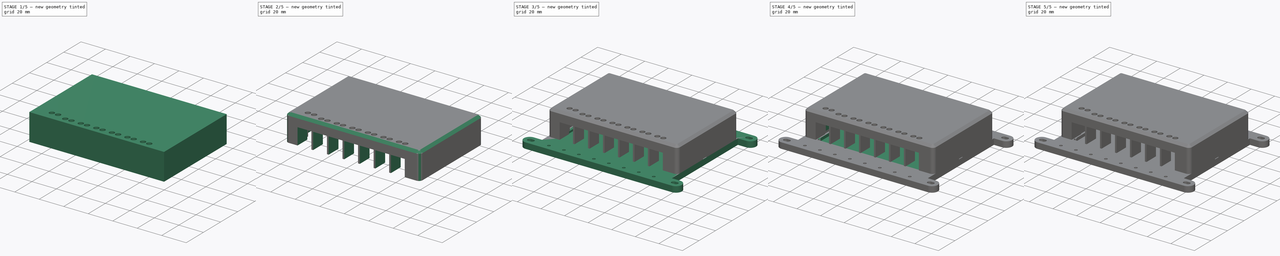
[diagram: build sequence overview — one tinted view per stage of 5, left to right]
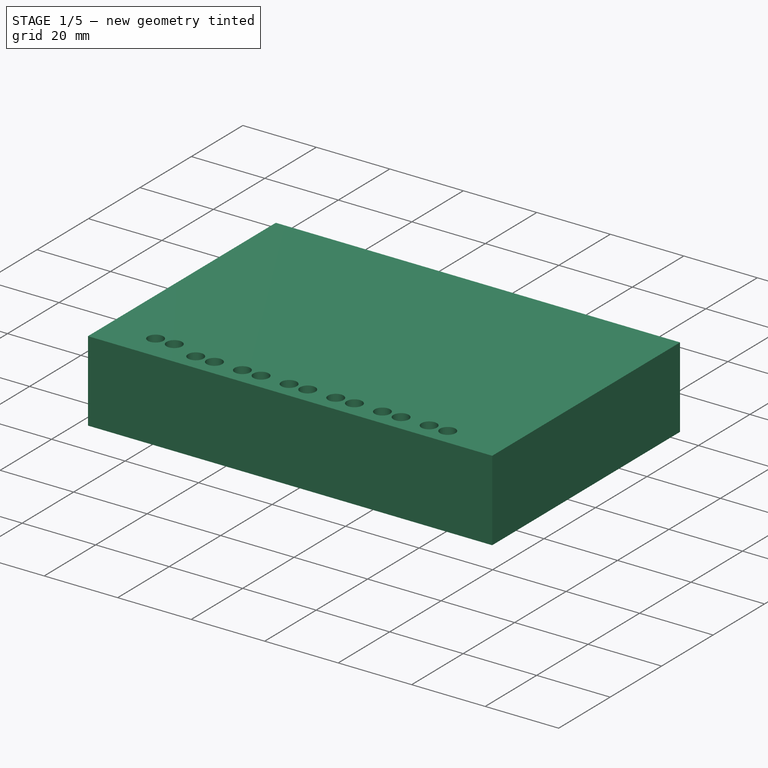
[diagram: stage 1 of 5 — iso view after this stage's code; geometry added in this stage tinted green]
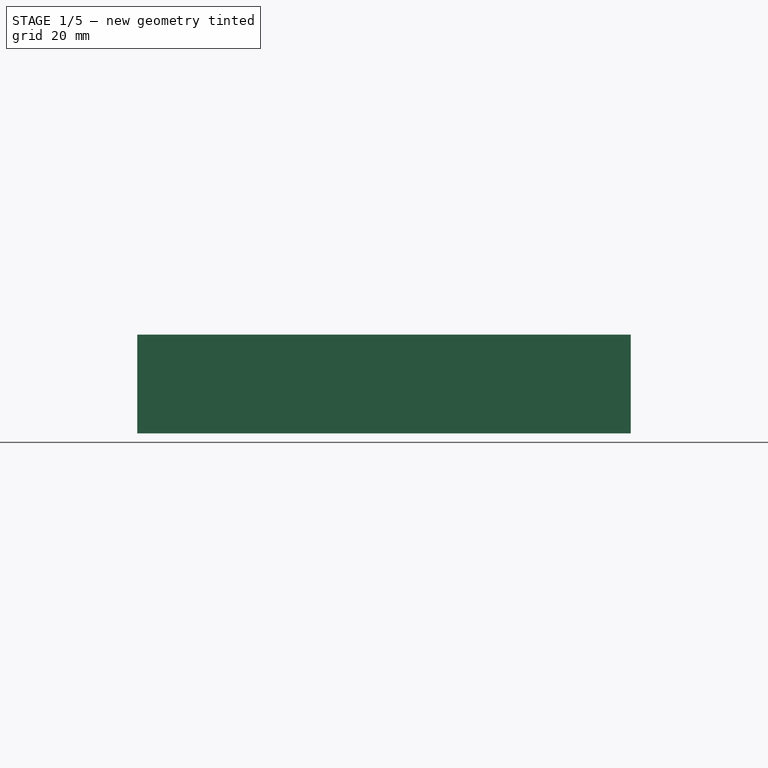
[diagram: stage 1 of 5 — front view after this stage's code; geometry added in this stage tinted green]
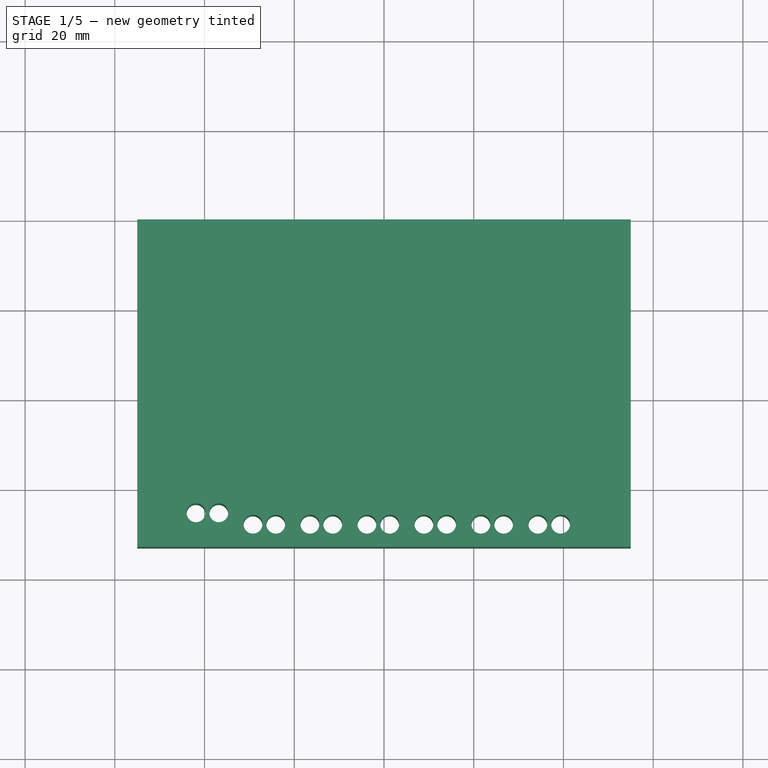
[diagram: stage 1 of 5 — top view after this stage's code; geometry added in this stage tinted green]
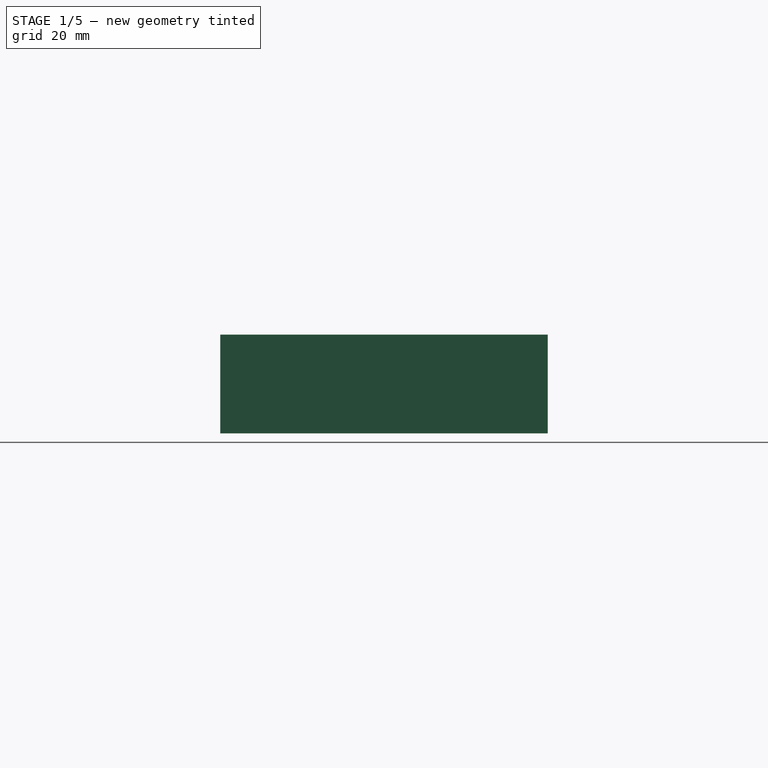
[diagram: stage 1 of 5 — right view after this stage's code; geometry added in this stage tinted green]
FCSTD DOCUMENT  (FreeCAD 0.19R24366 (Git))
Label: pwm_002
License: All rights reserved
LicenseURL: http://en.wikipedia.org/wiki/All_rights_reserved
objects: Sketcher::SketchObject×12, PartDesign::Pocket×8, PartDesign::Pad×4, PartDesign::Chamfer×4, PartDesign::Body×2, PartDesign::Fillet×1, PartDesign::Plane×1
note: 49 computed .brp shape members not serialized (recipe doc carries the construction recipe); baked Part::Feature solids carry a one-line shape summary decoded from their .brp

FEATURE [Sketcher::SketchObject] Sketch004
  FullyConstrained = true
  MapMode = 5
  Support = -> [XY_Plane001]
  expr: Constraints[6] = 2.54 * 23
  expr: Constraints[7] = 2.54 * 35
  expr: Constraints[12] = 2.54 * 2
  expr: Constraints[14] = 2.54 * 2
  expr: Constraints[16] = 2.54 * 3
  expr: Constraints[29] = 2.54 * 3
  expr: Constraints[30] = 2.54 * 3
  expr: Constraints[31] = 2.54 * 3
  expr: Constraints[34] = 2.54 * 3
  expr: Constraints[35] = 2.54 * 3
  sketch-geometry (32):
    g0: LineSegment StartX=-44.45 StartY=29.21 StartZ=0 EndX=44.45 EndY=29.21 EndZ=0
    g1: LineSegment StartX=44.45 StartY=29.21 StartZ=0 EndX=44.45 EndY=-29.21 EndZ=0
    g2: LineSegment StartX=-44.45 StartY=-29.21 StartZ=0 EndX=-44.45 EndY=29.21 EndZ=0
    g3: LineSegment StartX=34.29 StartY=-27.94 StartZ=0 EndX=39.37 EndY=-27.94 EndZ=0
    g4: LineSegment StartX=21.59 StartY=-27.94 StartZ=0 EndX=26.67 EndY=-27.94 EndZ=0
    g5: LineSegment StartX=8.89 StartY=-27.94 StartZ=0 EndX=13.97 EndY=-27.94 EndZ=0
    g6: LineSegment StartX=-3.81 StartY=-27.94 StartZ=0 EndX=1.27 EndY=-27.94 EndZ=0
    g7: LineSegment StartX=-16.51 StartY=-27.94 StartZ=0 EndX=-11.43 EndY=-27.94 EndZ=0
    g8: LineSegment StartX=-41.91 StartY=-25.4 StartZ=0 EndX=-36.83 EndY=-25.4 EndZ=0
    g9: LineSegment StartX=-29.21 StartY=-27.94 StartZ=0 EndX=-24.13 EndY=-27.94 EndZ=0
    g10: Circle CenterX=-29.21 CenterY=-27.94 CenterZ=0 NormalX=0 NormalY=0 NormalZ=1 AngleXU=0 Radius=2.1
    g11: Circle CenterX=-24.13 CenterY=-27.94 CenterZ=0 NormalX=0 NormalY=0 NormalZ=1 AngleXU=0 Radius=2.1
    g12: Circle CenterX=-16.51 CenterY=-27.94 CenterZ=0 NormalX=0 NormalY=0 NormalZ=1 AngleXU=0 Radius=2.1
    g13: Circle CenterX=-11.43 CenterY=-27.94 CenterZ=0 NormalX=0 NormalY=0 NormalZ=1 AngleXU=0 Radius=2.1
    g14: Circle CenterX=-3.81 CenterY=-27.94 CenterZ=0 NormalX=0 NormalY=0 NormalZ=1 AngleXU=0 Radius=2.1
    g15: Circle CenterX=1.27 CenterY=-27.94 CenterZ=0 NormalX=0 NormalY=0 NormalZ=1 AngleXU=0 Radius=2.1
    g16: Circle CenterX=8.89 CenterY=-27.94 CenterZ=0 NormalX=0 NormalY=0 NormalZ=1 AngleXU=0 Radius=2.1
    g17: Circle CenterX=13.97 CenterY=-27.94 CenterZ=0 NormalX=0 NormalY=0 NormalZ=1 AngleXU=0 Radius=2.1
    g18: Circle CenterX=21.59 CenterY=-27.94 CenterZ=0 NormalX=0 NormalY=0 NormalZ=1 AngleXU=0 Radius=2.1
    g19: Circle CenterX=26.67 CenterY=-27.94 CenterZ=0 NormalX=0 NormalY=0 NormalZ=1 AngleXU=0 Radius=2.1
    g20: Circle CenterX=34.29 CenterY=-27.94 CenterZ=0 NormalX=0 NormalY=0 NormalZ=1 AngleXU=0 Radius=2.1
    g21: Circle CenterX=39.37 CenterY=-27.94 CenterZ=0 NormalX=0 NormalY=0 NormalZ=1 AngleXU=0 Radius=2.1
    g22: Circle CenterX=-41.91 CenterY=-25.4 CenterZ=0 NormalX=0 NormalY=0 NormalZ=1 AngleXU=0 Radius=2.1
    g23: Circle CenterX=-36.83 CenterY=-25.4 CenterZ=0 NormalX=0 NormalY=0 NormalZ=1 AngleXU=0 Radius=2.1
    g24: LineSegment StartX=-55 StartY=40 StartZ=0 EndX=55 EndY=40 EndZ=0
    g25: LineSegment StartX=55 StartY=40 StartZ=0 EndX=55 EndY=-33 EndZ=0
    g26: LineSegment StartX=55 StartY=-33 StartZ=0 EndX=-55 EndY=-33 EndZ=0
    g27: LineSegment StartX=-55 StartY=-33 StartZ=0 EndX=-55 EndY=40 EndZ=0
    g28: LineSegment StartX=-47.65 StartY=32.2 StartZ=0 EndX=47.65 EndY=32.2 EndZ=0
    g29: LineSegment StartX=47.65 StartY=32.2 StartZ=0 EndX=47.65 EndY=-32.2 EndZ=0
    g30: LineSegment StartX=47.65 StartY=-32.2 StartZ=0 EndX=-47.65 EndY=-32.2 EndZ=0
    g31: LineSegment StartX=-47.65 StartY=-32.2 StartZ=0 EndX=-47.65 EndY=32.2 EndZ=0
  constraints (88):
    c: Coincident(g0,g1)
    c: Coincident(g2,g0)
    c: Horizontal(g0)
    c: Vertical(g1)
    c: Vertical(g2)
    c: Symmetric(g1,g0,g-1)
    c: DistanceY(g1,g1) = 58.42
    c: DistanceX(g0,g0) = 88.9
    c: Horizontal(g4)
    c: Horizontal(g3)
    c: Horizontal(g2,g1)
    c: Equal(g3,g4)
    c: DistanceX(g3,g3) = 5.08
    c: DistanceY(g1,g3) = 1.27
    c: DistanceX(g3,g1) = 5.08
    c: Horizontal(g4,g3)
    c: DistanceX(g4,g3) = 7.62
    c: Horizontal(g5)
    c: Horizontal(g6)
    c: Horizontal(g7)
    c: Horizontal(g8)
    c: Horizontal(g9)
    c: Equal(g5,g6)
    c: Equal(g6,g7)
    c: Equal(g7,g8)
    c: Equal(g9,g4)
    c: Horizontal(g5,g4)
    c: Horizontal(g6,g5)
    c: Horizontal(g7,g6)
    c: DistanceX(g5,g4) = 7.62
    c: DistanceX(g6,g5) = 7.62
    c: DistanceX(g7,g6) = 7.62
    c: Horizontal(g9,g7)
    c: Equal(g7,g9)
    c: DistanceX(g9,g7) = 7.62
    c: DistanceX(g8,g9) = 7.62
    c: DistanceY(g9,g8) = 2.54
    c: Equal(g21,g20)
    c: Equal(g20,g19)
    c: Equal(g19,g18)
    c: Diameter(g21) = 4.2
    c: Coincident(g21,g3)
    c: Coincident(g20,g3)
    c: Coincident(g19,g4)
    c: Coincident(g18,g4)
    c: Equal(g17,g16)
    c: Equal(g16,g15)
    c: Equal(g15,g14)
    c: Equal(g14,g21)
    c: Coincident(g5,g17)
    c: Coincident(g5,g16)
    c: Coincident(g15,g6)
    c: Coincident(g14,g6)
    c: Equal(g13,g12)
    c: Equal(g12,g11)
    c: Equal(g11,g10)
    c: Equal(g10,g21)
    c: Coincident(g13,g7)
    c: Coincident(g7,g12)
    c: Coincident(g11,g9)
    c: Coincident(g9,g10)
    c: Equal(g22,g23)
    c: Equal(g23,g21)
    c: Coincident(g23,g8)
    c: Coincident(g8,g22)
    c: DistanceX(g19,g20) = 7.62
    c: Coincident(g24,g25)
    c: Coincident(g25,g26)
    c: Coincident(g26,g27)
    c: Coincident(g27,g24)
    c: Horizontal(g26)
    c: Vertical(g27)
    c: Symmetric(g24,g24,g-2)
    c: DistanceX(g24,g24) = 110
    c: DistanceY(g-1,g24) = 40
    c: Coincident(g28,g29)
    c: Coincident(g29,g30)
    c: Coincident(g30,g31)
    c: Coincident(g31,g28)
    c: Horizontal(g28)
    c: Horizontal(g30)
    c: Vertical(g29)
    c: Vertical(g31)
    c: Symmetric(g29,g28,g-1)
    c: DistanceX(g28,g28) = 95.3
    c: DistanceY(g29,g29) = 64.4
    c: DistanceY(g25,g-1) = 33
    c: Vertical(g25)
FEATURE [PartDesign::Pad] Pad002
  Direction = (1,1,1)
  Length = 22
  Length2 = 100
  Profile = -> Sketch004
  Refine = true
  Type = 0
FEATURE [Sketcher::SketchObject] Sketch005
  FullyConstrained = false
  MapMode = 5
  Support = -> [XY_Plane001]
  expr: Constraints[10] = 2.54 * 35
  expr: Constraints[19] = 2.54 * 3
  sketch-geometry (15):
    g0: LineSegment StartX=-44.45 StartY=29.21 StartZ=0 EndX=44.45 EndY=29.21 EndZ=0
    g1: LineSegment StartX=44.45 StartY=29.21 StartZ=0 EndX=44.45 EndY=-29.21 EndZ=0
    g2: LineSegment StartX=44.45 StartY=-29.21 StartZ=0 EndX=-44.45 EndY=-29.21 EndZ=0
    g3: LineSegment StartX=-44.45 StartY=-29.21 StartZ=0 EndX=-44.45 EndY=29.21 EndZ=0
    g4: LineSegment StartX=-44.45 StartY=27.94 StartZ=0 EndX=44.45 EndY=27.94 EndZ=0
    g5: LineSegment StartX=44.45 StartY=27.94 StartZ=0 EndX=44.45 EndY=-21.59 EndZ=0
    g6: LineSegment StartX=44.45 StartY=-21.59 StartZ=0 EndX=-44.45 EndY=-21.59 EndZ=0
    g7: LineSegment StartX=-44.45 StartY=-21.59 StartZ=0 EndX=-44.45 EndY=27.94 EndZ=0
    g8: LineSegment StartX=44.45 StartY=27.94 StartZ=0 EndX=47.45 EndY=27.94 EndZ=0
    g9: LineSegment StartX=47.45 StartY=27.94 StartZ=0 EndX=47.45 EndY=-21.59 EndZ=0
    g10: LineSegment StartX=47.45 StartY=-21.59 StartZ=0 EndX=44.45 EndY=-21.59 EndZ=0
    g11: GeomPoint X=86.227 Y=-11.8513 Z=0
    g12: LineSegment StartX=-44.45 StartY=27.94 StartZ=0 EndX=-47.45 EndY=27.94 EndZ=0
    g13: LineSegment StartX=-47.45 StartY=27.94 StartZ=0 EndX=-47.45 EndY=-21.59 EndZ=0
    g14: LineSegment StartX=-47.45 StartY=-21.59 StartZ=0 EndX=-44.45 EndY=-21.59 EndZ=0
  constraints (40):
    c: Coincident(g0,g1)
    c: Coincident(g1,g2)
    c: Coincident(g2,g3)
    c: Coincident(g3,g0)
    c: Horizontal(g0)
    c: Horizontal(g2)
    c: Vertical(g1)
    c: Vertical(g3)
    c: Symmetric(g0,g1,g-1)
    c: DistanceY(g1,g1) = 58.42
    c: DistanceX(g0,g0) = 88.9
    c: Coincident(g4,g5)
    c: Coincident(g5,g6)
    c: Coincident(g6,g7)
    c: Coincident(g7,g4)
    c: Horizontal(g4)
    c: Horizontal(g6)
    c: Vertical(g5)
    c: Vertical(g7)
    c: DistanceY(g1,g5) = 7.62
    c: DistanceY(g4,g0) = 1.27
    c: PointOnObject(g4,g1)
    c: PointOnObject(g4,g3)
    c: Horizontal(g8)
    c: Coincident(g8,g9)
    c: Vertical(g9)
    c: Coincident(g9,g10)
    c: Horizontal(g10)
    c: Coincident(g8,g4)
    c: DistanceX(g10,g10) = 3
    c: Coincident(g10,g6)
    c: Horizontal(g12)
    c: Coincident(g12,g13)
    c: Vertical(g13)
    c: Coincident(g13,g14)
    c: Horizontal(g14)
    c: Coincident(g14,g6)
    c: PointOnObject(g12,g3)
    c: PointOnObject(g12,g4)
    c: DistanceX(g12,g12) = 3
FEATURE [PartDesign::Pocket] Pocket002
  BaseFeature = -> Pad002
  Length = 21
  Length2 = 100
  Profile = -> Sketch005
  Refine = true
  Reversed = true
  Type = 0
FEATURE [Sketcher::SketchObject] Sketch006
  ExternalGeometry = -> [Pocket002]
  FullyConstrained = true
  MapMode = 5
  Support = -> [XY_Plane001]
  expr: Constraints[40] = 1.27 * 31
  expr: Constraints[49] = 35 * 2.54
  expr: Constraints[63] = 2.54 * 12
  expr: Constraints[51] = 2.54 * 23
  expr: Constraints[55] = 1.27 * 7
  expr: Constraints[53] = 1.27 * 11
  expr: Constraints[54] = 2.54 * 2
  expr: Constraints[60] = 2.54 * 3
  expr: Constraints[61] = 2.54 * 7
  sketch-geometry (24):
    g0: LineSegment StartX=-1.905 StartY=40 StartZ=0 EndX=37.465 EndY=40 EndZ=0
    g1: LineSegment StartX=37.465 StartY=40 StartZ=0 EndX=37.465 EndY=27.94 EndZ=0
    g2: LineSegment StartX=37.465 StartY=27.94 StartZ=0 EndX=-1.905 EndY=27.94 EndZ=0
    g3: LineSegment StartX=-1.905 StartY=27.94 StartZ=0 EndX=-1.905 EndY=40 EndZ=0
    g4: LineSegment StartX=-31.115 StartY=40 StartZ=0 EndX=-22.225 EndY=40 EndZ=0
    g5: LineSegment StartX=-22.225 StartY=40 StartZ=0 EndX=-22.225 EndY=27.94 EndZ=0
    g6: LineSegment StartX=-22.225 StartY=27.94 StartZ=0 EndX=-31.115 EndY=27.94 EndZ=0
    g7: LineSegment StartX=-31.115 StartY=27.94 StartZ=0 EndX=-31.115 EndY=40 EndZ=0
    g8: LineSegment StartX=-41.275 StartY=40 StartZ=0 EndX=-32.385 EndY=40 EndZ=0
    g9: LineSegment StartX=-32.385 StartY=40 StartZ=0 EndX=-32.385 EndY=27.94 EndZ=0
    g10: LineSegment StartX=-32.385 StartY=27.94 StartZ=0 EndX=-41.275 EndY=27.94 EndZ=0
    g11: LineSegment StartX=-41.275 StartY=27.94 StartZ=0 EndX=-41.275 EndY=40 EndZ=0
    g12: LineSegment StartX=-20.955 StartY=40 StartZ=0 EndX=-6.985 EndY=40 EndZ=0
    g13: LineSegment StartX=-6.985 StartY=40 StartZ=0 EndX=-6.985 EndY=27.94 EndZ=0
    g14: LineSegment StartX=-6.985 StartY=27.94 StartZ=0 EndX=-20.955 EndY=27.94 EndZ=0
    g15: LineSegment StartX=-20.955 StartY=27.94 StartZ=0 EndX=-20.955 EndY=40 EndZ=0
    g16: LineSegment StartX=-44.45 StartY=29.21 StartZ=0 EndX=44.45 EndY=29.21 EndZ=0
    g17: LineSegment StartX=44.45 StartY=29.21 StartZ=0 EndX=44.45 EndY=-29.21 EndZ=0
    g18: LineSegment StartX=44.45 StartY=-29.21 StartZ=0 EndX=-44.45 EndY=-29.21 EndZ=0
    g19: LineSegment StartX=-44.45 StartY=-29.21 StartZ=0 EndX=-44.45 EndY=29.21 EndZ=0
    g20: GeomPoint X=-36.83 Y=27.94 Z=0
    g21: GeomPoint X=-26.67 Y=27.94 Z=0
    g22: GeomPoint X=-13.97 Y=27.94 Z=0
    g23: GeomPoint X=17.78 Y=27.94 Z=0
  constraints (64):
    c: Coincident(g0,g1)
    c: Coincident(g1,g2)
    c: Coincident(g2,g3)
    c: Coincident(g3,g0)
    c: Horizontal(g0)
    c: Horizontal(g2)
    c: Vertical(g1)
    c: Vertical(g3)
    c: Coincident(g4,g5)
    c: Coincident(g5,g6)
    c: Coincident(g6,g7)
    c: Coincident(g7,g4)
    c: Horizontal(g4)
    c: Horizontal(g6)
    c: Vertical(g5)
    c: Vertical(g7)
    c: Coincident(g8,g9)
    c: Coincident(g9,g10)
    c: Coincident(g10,g11)
    c: Coincident(g11,g8)
    c: Horizontal(g8)
    c: Horizontal(g10)
    c: Vertical(g9)
    c: Vertical(g11)
    c: Coincident(g12,g13)
    c: Coincident(g13,g14)
    c: Coincident(g14,g15)
    c: Coincident(g15,g12)
    c: Horizontal(g12)
    c: Horizontal(g14)
    c: Vertical(g13)
    c: Vertical(g15)
    c: Equal(g9,g7)
    c: Equal(g7,g15)
    c: Equal(g15,g3)
    c: Horizontal(g8,g4)
    c: Horizontal(g4,g12)
    c: Horizontal(g12,g0)
    c: Horizontal(g8,g-3)
    c: PointOnObject(g10,g-4)
    c: DistanceX(g0,g0) = 39.37
    c: Coincident(g16,g17)
    c: Coincident(g17,g18)
    c: Coincident(g18,g19)
    c: Coincident(g19,g16)
    c: Horizontal(g16)
    c: Horizontal(g18)
    c: Vertical(g17)
    c: Vertical(g19)
    c: DistanceX(g16,g16) = 88.9
    c: Symmetric(g16,g17,g-1)
    c: DistanceY(g17,g17) = 58.42
    c: Equal(g8,g4)
    c: DistanceX(g12,g12) = 13.97
    c: DistanceX(g12,g0) = 5.08
    c: DistanceX(g4,g4) = 8.89
    c: Symmetric(g10,g9,g20)
    c: Symmetric(g6,g5,g21)
    c: Symmetric(g14,g13,g22)
    c: Symmetric(g2,g1,g23)
    c: DistanceX(g16,g20) = 7.62
    c: DistanceX(g16,g21) = 17.78
    c: DistanceX(g9,g6) = 1.27
    c: DistanceX(g16,g22) = 30.48
FEATURE [PartDesign::Pocket] Pocket003
  BaseFeature = -> Pocket002
  Length = 7
  Length2 = 100
  Profile = -> Sketch006
  Refine = true
  Reversed = true
  Type = 0
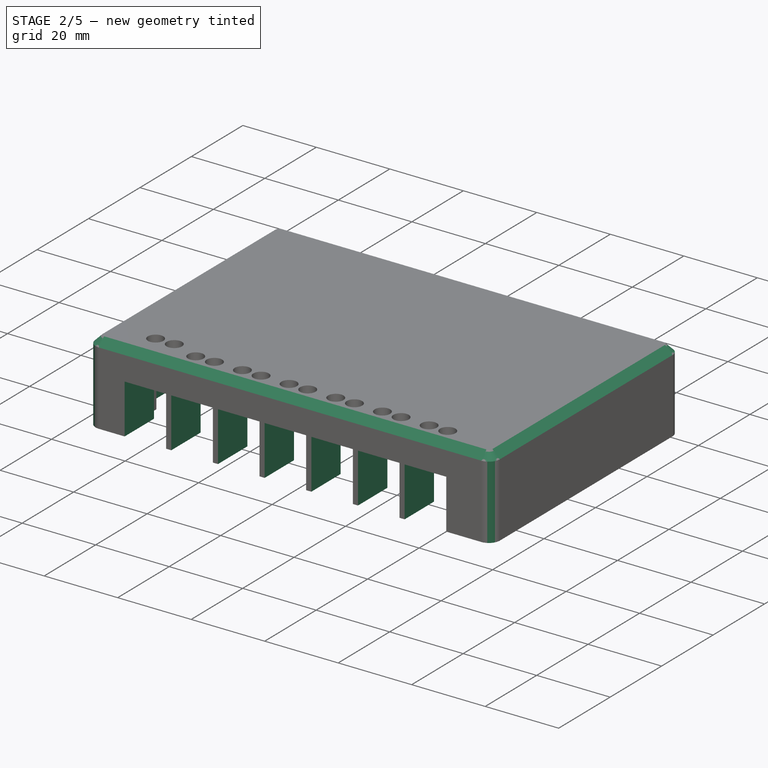
[diagram: stage 2 of 5 — iso view after this stage's code; geometry added in this stage tinted green]
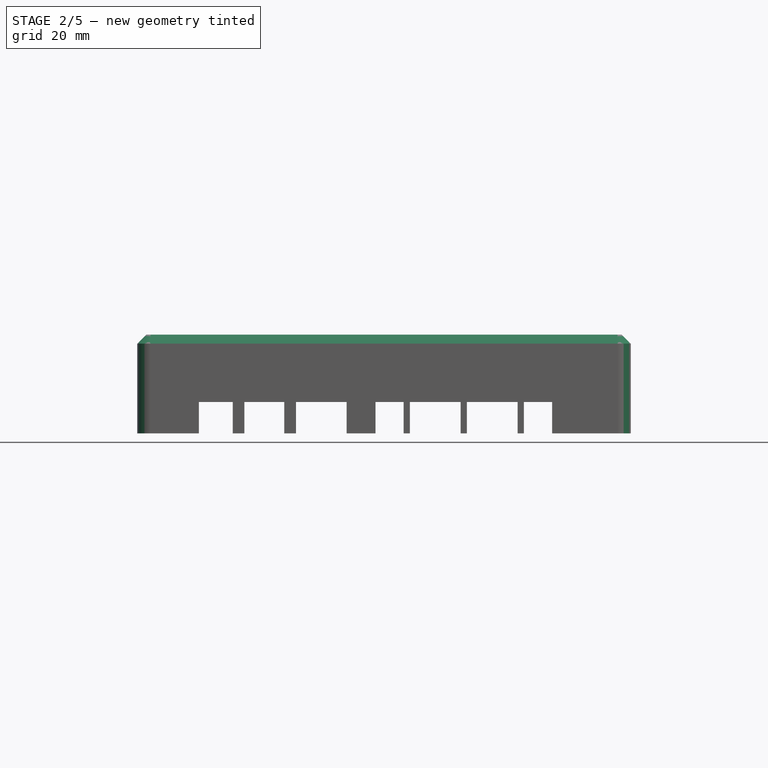
[diagram: stage 2 of 5 — front view after this stage's code; geometry added in this stage tinted green]
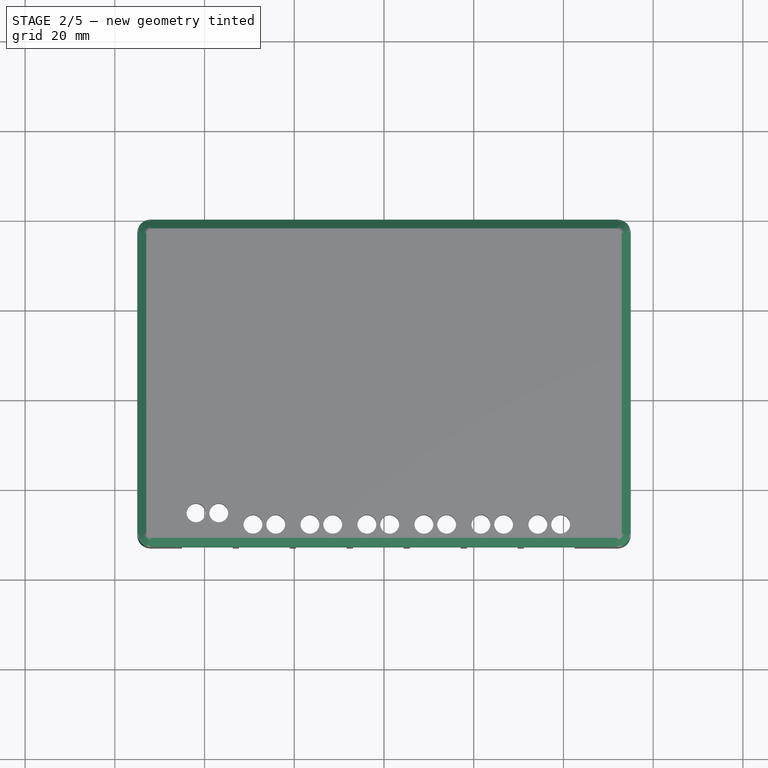
[diagram: stage 2 of 5 — top view after this stage's code; geometry added in this stage tinted green]
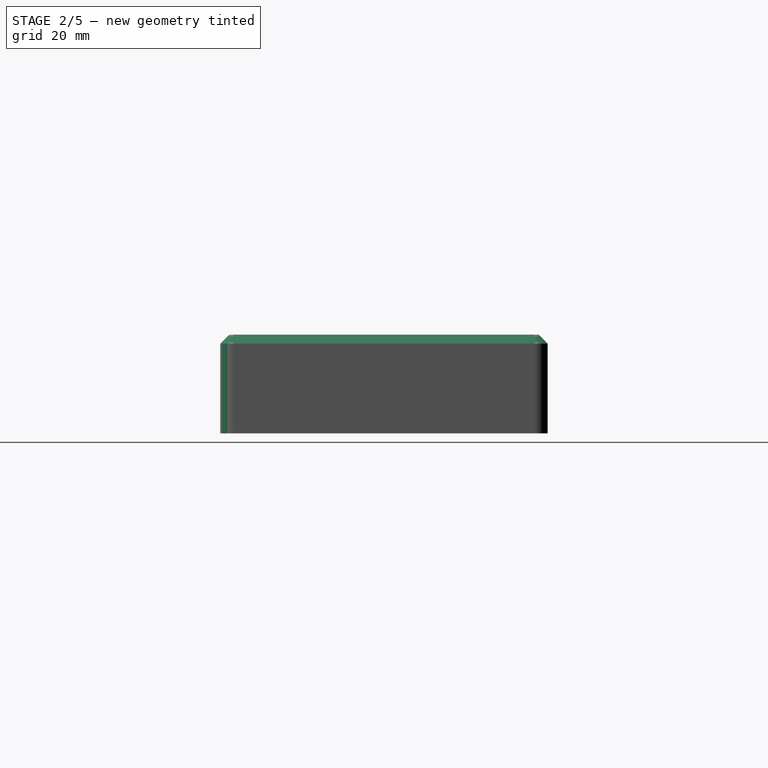
[diagram: stage 2 of 5 — right view after this stage's code; geometry added in this stage tinted green]
FEATURE [Sketcher::SketchObject] Sketch007
  ExternalGeometry = -> [Pocket003]
  FullyConstrained = true
  MapMode = 5
  Support = -> [XY_Plane001]
  expr: Constraints[8] = 2.54 * 23
  expr: Constraints[10] = 2.54 * 35
  expr: Constraints[98] = 2.54 * 18
  expr: Constraints[95] = 2.54 * 3
  expr: Constraints[96] = 2.54 * 8
  expr: Constraints[97] = 2.54 * 13
  expr: Constraints[102] = 2.54 * 33
  expr: Constraints[100] = 2.54 * 23
  expr: Constraints[101] = 2.54 * 28
  sketch-geometry (39):
    g0: LineSegment StartX=-44.45 StartY=29.21 StartZ=0 EndX=44.45 EndY=29.21 EndZ=0
    g1: LineSegment StartX=44.45 StartY=29.21 StartZ=0 EndX=44.45 EndY=-29.21 EndZ=0
    g2: LineSegment StartX=44.45 StartY=-29.21 StartZ=0 EndX=-44.45 EndY=-29.21 EndZ=0
    g3: LineSegment StartX=-44.45 StartY=-29.21 StartZ=0 EndX=-44.45 EndY=29.21 EndZ=0
    g4: GeomPoint X=36.83 Y=-21.59 Z=0
    g5: GeomPoint X=24.13 Y=-21.59 Z=0
    g6: GeomPoint X=11.43 Y=-21.59 Z=0
    g7: GeomPoint X=-1.27 Y=-21.59 Z=0
    g8: GeomPoint X=-13.97 Y=-21.59 Z=0
    g9: GeomPoint X=-26.67 Y=-21.59 Z=0
    g10: GeomPoint X=-39.37 Y=-21.59 Z=0
    g11: LineSegment StartX=-45.02 StartY=-21.59 StartZ=0 EndX=-33.72 EndY=-21.59 EndZ=0
    g12: LineSegment StartX=-33.72 StartY=-21.59 StartZ=0 EndX=-33.72 EndY=-33 EndZ=0
    g13: LineSegment StartX=-33.72 StartY=-33 StartZ=0 EndX=-45.02 EndY=-33 EndZ=0
    g14: LineSegment StartX=-45.02 StartY=-33 StartZ=0 EndX=-45.02 EndY=-21.59 EndZ=0
    g15: LineSegment StartX=-32.32 StartY=-21.59 StartZ=0 EndX=-21.02 EndY=-21.59 EndZ=0
    g16: LineSegment StartX=-21.02 StartY=-21.59 StartZ=0 EndX=-21.02 EndY=-33 EndZ=0
    g17: LineSegment StartX=-21.02 StartY=-33 StartZ=0 EndX=-32.32 EndY=-33 EndZ=0
    g18: LineSegment StartX=-32.32 StartY=-33 StartZ=0 EndX=-32.32 EndY=-21.59 EndZ=0
    g19: LineSegment StartX=-19.62 StartY=-21.59 StartZ=0 EndX=-8.32 EndY=-21.59 EndZ=0
    g20: LineSegment StartX=-8.32 StartY=-21.59 StartZ=0 EndX=-8.32 EndY=-33 EndZ=0
    g21: LineSegment StartX=-8.32 StartY=-33 StartZ=0 EndX=-19.62 EndY=-33 EndZ=0
    g22: LineSegment StartX=-19.62 StartY=-33 StartZ=0 EndX=-19.62 EndY=-21.59 EndZ=0
    g23: LineSegment StartX=-6.92 StartY=-21.59 StartZ=0 EndX=4.38 EndY=-21.59 EndZ=0
    g24: LineSegment StartX=4.38 StartY=-21.59 StartZ=0 EndX=4.38 EndY=-33 EndZ=0
    g25: LineSegment StartX=4.38 StartY=-33 StartZ=0 EndX=-6.92 EndY=-33 EndZ=0
    g26: LineSegment StartX=-6.92 StartY=-33 StartZ=0 EndX=-6.92 EndY=-21.59 EndZ=0
    g27: LineSegment StartX=5.78 StartY=-21.59 StartZ=0 EndX=17.08 EndY=-21.59 EndZ=0
    g28: LineSegment StartX=17.08 StartY=-21.59 StartZ=0 EndX=17.08 EndY=-33 EndZ=0
    g29: LineSegment StartX=17.08 StartY=-33 StartZ=0 EndX=5.78 EndY=-33 EndZ=0
    g30: LineSegment StartX=5.78 StartY=-33 StartZ=0 EndX=5.78 EndY=-21.59 EndZ=0
    g31: LineSegment StartX=18.48 StartY=-21.59 StartZ=0 EndX=29.78 EndY=-21.59 EndZ=0
    g32: LineSegment StartX=29.78 StartY=-21.59 StartZ=0 EndX=29.78 EndY=-33 EndZ=0
    g33: LineSegment StartX=29.78 StartY=-33 StartZ=0 EndX=18.48 EndY=-33 EndZ=0
    g34: LineSegment StartX=18.48 StartY=-33 StartZ=0 EndX=18.48 EndY=-21.59 EndZ=0
    g35: LineSegment StartX=31.18 StartY=-21.59 StartZ=0 EndX=42.48 EndY=-21.59 EndZ=0
    g36: LineSegment StartX=42.48 StartY=-21.59 StartZ=0 EndX=42.48 EndY=-33 EndZ=0
    g37: LineSegment StartX=42.48 StartY=-33 StartZ=0 EndX=31.18 EndY=-33 EndZ=0
    g38: LineSegment StartX=31.18 StartY=-33 StartZ=0 EndX=31.18 EndY=-21.59 EndZ=0
  constraints (103):
    c: Coincident(g0,g1)
    c: Coincident(g1,g2)
    c: Coincident(g2,g3)
    c: Coincident(g3,g0)
    c: Horizontal(g0)
    c: Horizontal(g2)
    c: Vertical(g1)
    c: Vertical(g3)
    c: DistanceY(g1,g1) = 58.42
    c: Symmetric(g1,g0,g-1)
    c: DistanceX(g0,g0) = 88.9
    c: Coincident(g11,g12)
    c: Coincident(g12,g13)
    c: Coincident(g13,g14)
    c: Coincident(g14,g11)
    c: Horizontal(g11)
    c: Horizontal(g13)
    c: Vertical(g12)
    c: Vertical(g14)
    c: Coincident(g15,g16)
    c: Coincident(g16,g17)
    c: Coincident(g17,g18)
    c: Coincident(g18,g15)
    c: Horizontal(g15)
    c: Horizontal(g17)
    c: Vertical(g16)
    c: Vertical(g18)
    c: Coincident(g19,g20)
    c: Coincident(g20,g21)
    c: Coincident(g21,g22)
    c: Coincident(g22,g19)
    c: Horizontal(g19)
    c: Horizontal(g21)
    c: Vertical(g20)
    c: Vertical(g22)
    c: Coincident(g23,g24)
    c: Coincident(g24,g25)
    c: Coincident(g25,g26)
    c: Coincident(g26,g23)
    c: Horizontal(g23)
    c: Horizontal(g25)
    c: Vertical(g24)
    c: Vertical(g26)
    c: Coincident(g27,g28)
    c: Coincident(g28,g29)
    c: Coincident(g29,g30)
    c: Coincident(g30,g27)
    c: Horizontal(g27)
    c: Horizontal(g29)
    c: Vertical(g28)
    c: Vertical(g30)
    c: Coincident(g31,g32)
    c: Coincident(g32,g33)
    c: Coincident(g33,g34)
    c: Coincident(g34,g31)
    c: Horizontal(g31)
    c: Horizontal(g33)
    c: Vertical(g32)
    c: Vertical(g34)
    c: Coincident(g35,g36)
    c: Coincident(g36,g37)
    c: Coincident(g37,g38)
    c: Coincident(g38,g35)
    c: Horizontal(g35)
    c: Horizontal(g37)
    c: Vertical(g36)
    c: Vertical(g38)
    c: Equal(g36,g32)
    c: Equal(g32,g28)
    c: Equal(g28,g24)
    c: Equal(g24,g20)
    c: Equal(g20,g16)
    c: Equal(g16,g12)
    c: Equal(g11,g15)
    c: Equal(g15,g19)
    c: Equal(g19,g23)
    c: Equal(g23,g27)
    c: Equal(g27,g31)
    c: Equal(g31,g35)
    c: Horizontal(g11,g15)
    c: Horizontal(g15,g19)
    c: Horizontal(g19,g23)
    c: Horizontal(g23,g27)
    c: Horizontal(g27,g31)
    c: Horizontal(g31,g35)
    c: Symmetric(g11,g11,g10)
    c: Symmetric(g15,g15,g9)
    c: Symmetric(g19,g19,g8)
    c: Symmetric(g23,g23,g7)
    c: Symmetric(g27,g27,g6)
    c: Symmetric(g31,g31,g5)
    c: Symmetric(g35,g35,g4)
    c: PointOnObject(g35,g-3)
    c: PointOnObject(g36,g-4)
    c: DistanceX(g37,g37) = 11.3
    c: DistanceX(g4,g1) = 7.62
    c: DistanceX(g5,g1) = 20.32
    c: DistanceX(g6,g1) = 33.02
    c: DistanceX(g7,g1) = 45.72
    c: DistanceX(g31,g35) = 1.4
    c: DistanceX(g8,g1) = 58.42
    c: DistanceX(g9,g1) = 71.12
    c: DistanceX(g10,g1) = 83.82
FEATURE [PartDesign::Pocket] Pocket004
  BaseFeature = -> Pocket003
  Length = 13.5
  Length2 = 100
  Profile = -> Sketch007
  Refine = true
  Reversed = true
  Type = 0
FEATURE [PartDesign::Fillet] Fillet
  Base = -> Pocket004 [Edge20,Edge82,Edge64,Edge18]
  BaseFeature = -> Pocket004
  Radius = 3
  Refine = true
  SupportTransform = false
FEATURE [PartDesign::Chamfer] Chamfer
  Angle = 45
  Base = -> Fillet [Edge39]
  BaseFeature = -> Fillet
  ChamferType = 0
  FlipDirection = false
  Refine = true
  Size = 2
  Size2 = 1
  SupportTransform = false
FEATURE [Sketcher::SketchObject] Sketch009
  FullyConstrained = false
  MapMode = 5
  Support = -> [XY_Plane001]
  sketch-geometry (18):
    g0: LineSegment StartX=-50.71 StartY=20.26 StartZ=0 EndX=-50.71 EndY=-20.26 EndZ=0
    g1: LineSegment StartX=-50.71 StartY=-20.26 StartZ=0 EndX=-47.65 EndY=-17.2 EndZ=0
    g2: LineSegment StartX=-47.65 StartY=-17.2 StartZ=0 EndX=-47.65 EndY=17.2 EndZ=0
    g3: LineSegment StartX=-47.65 StartY=17.2 StartZ=0 EndX=-50.71 EndY=20.26 EndZ=0
    g4: LineSegment StartX=47.65 StartY=17.2 StartZ=0 EndX=50.71 EndY=20.26 EndZ=0
    g5: LineSegment StartX=50.71 StartY=20.26 StartZ=0 EndX=50.71 EndY=-20.26 EndZ=0
    g6: LineSegment StartX=50.71 StartY=-20.26 StartZ=0 EndX=47.65 EndY=-17.2 EndZ=0
    g7: LineSegment StartX=47.65 StartY=-17.2 StartZ=0 EndX=47.65 EndY=17.2 EndZ=0
    g8: LineSegment StartX=-47.65 StartY=25.4444 StartZ=0 EndX=47.65 EndY=25.4444 EndZ=0
    g9: LineSegment StartX=47.65 StartY=25.4444 StartZ=0 EndX=47.65 EndY=-25.4444 EndZ=0
    g10: LineSegment StartX=47.65 StartY=-25.4444 StartZ=0 EndX=-47.65 EndY=-25.4444 EndZ=0
    g11: LineSegment StartX=-47.65 StartY=-25.4444 StartZ=0 EndX=-47.65 EndY=25.4444 EndZ=0
    g12: LineSegment StartX=-47.65 StartY=17.2 StartZ=0 EndX=-39.3513 EndY=17.2 EndZ=0
    g13: LineSegment StartX=-39.3513 StartY=17.2 StartZ=0 EndX=-39.3513 EndY=-17.2 EndZ=0
    g14: LineSegment StartX=-39.3513 StartY=-17.2 StartZ=0 EndX=-47.65 EndY=-17.2 EndZ=0
    g15: LineSegment StartX=47.65 StartY=17.2 StartZ=0 EndX=39.3513 EndY=17.2 EndZ=0
    g16: LineSegment StartX=39.3513 StartY=17.2 StartZ=0 EndX=39.3513 EndY=-17.2 EndZ=0
    g17: LineSegment StartX=39.3513 StartY=-17.2 StartZ=0 EndX=47.65 EndY=-17.2 EndZ=0
  constraints (48):
    c: Coincident(g0,g1)
    c: Coincident(g1,g2)
    c: Vertical(g2)
    c: Coincident(g2,g3)
    c: Coincident(g4,g5)
    c: Vertical(g5)
    c: Coincident(g5,g6)
    c: Coincident(g6,g7)
    c: Vertical(g7)
    c: Coincident(g0,g3)
    c: Coincident(g4,g7)
    c: Equal(g7,g2)
    c: Equal(g0,g5)
    c: Symmetric(g0,g0,g-1)
    c: Horizontal(g0,g4)
    c: Angle(g0,g3) = 0.785398
    c: Angle(g1,g0) = 0.785398
    c: Equal(g3,g4)
    c: DistanceX(g0,g2) = 3.06
    c: Coincident(g8,g9)
    c: Coincident(g9,g10)
    c: Coincident(g10,g11)
    c: Coincident(g11,g8)
    c: Horizontal(g8)
    c: Horizontal(g10)
    c: Vertical(g9)
    c: Vertical(g11)
    c: Symmetric(g9,g8,g-1)
    c: DistanceX(g8,g8) = 95.3
    c: PointOnObject(g2,g11)
    c: DistanceY(g-1,g0) = 20.26
    c: Angle(g4,g5) = 0.785398
    c: PointOnObject(g4,g9)
    c: Horizontal(g12)
    c: Coincident(g12,g13)
    c: Vertical(g13)
    c: Coincident(g13,g14)
    c: Horizontal(g14)
    c: Horizontal(g15)
    c: Coincident(g15,g16)
    c: Vertical(g16)
    c: Coincident(g16,g17)
    c: Horizontal(g17)
    c: Equal(g17,g14)
    c: Coincident(g12,g3)
    c: Coincident(g15,g4)
    c: Coincident(g14,g1)
    c: Coincident(g17,g6)
FEATURE [PartDesign::Pocket] Pocket005
  BaseFeature = -> Chamfer
  Length = 16
  Length2 = 100
  Profile = -> Sketch009
  Refine = true
  Reversed = true
  Type = 0
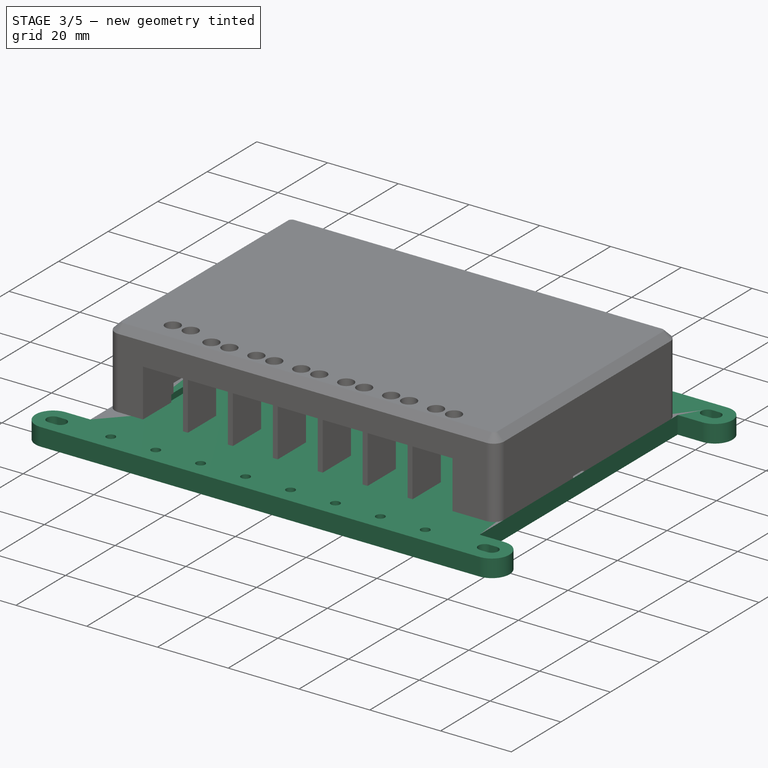
[diagram: stage 3 of 5 — iso view after this stage's code; geometry added in this stage tinted green]
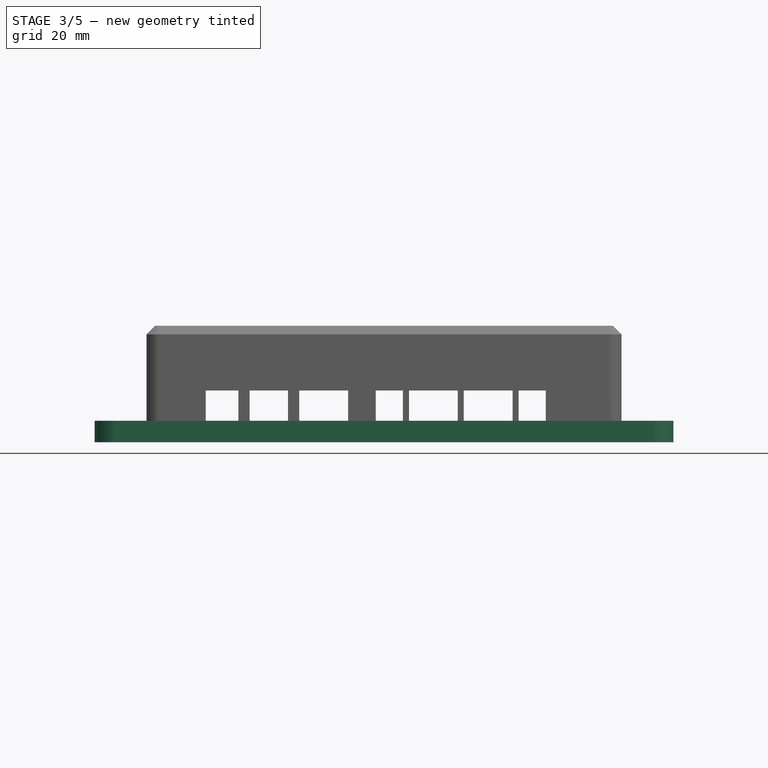
[diagram: stage 3 of 5 — front view after this stage's code; geometry added in this stage tinted green]
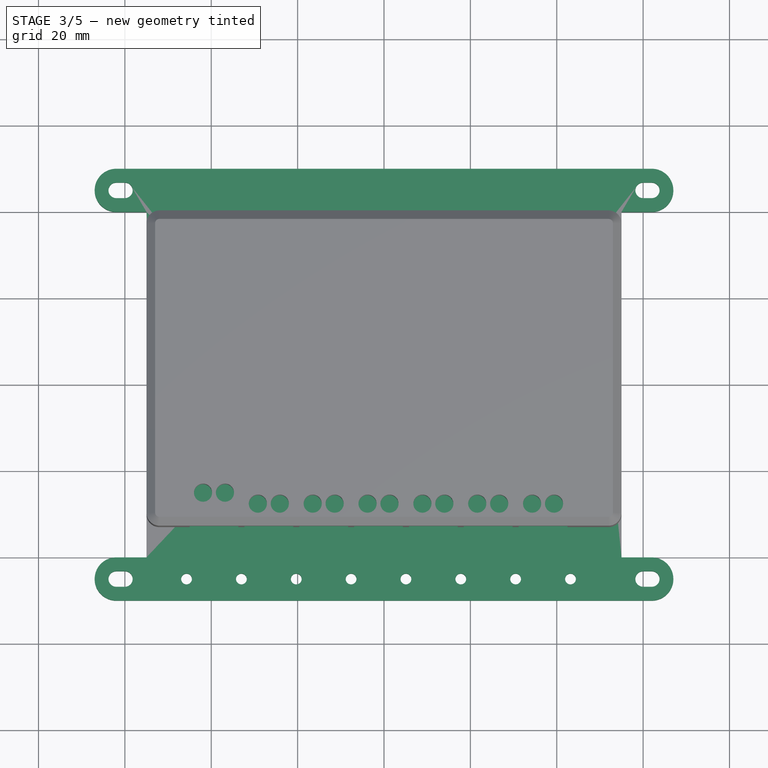
[diagram: stage 3 of 5 — top view after this stage's code; geometry added in this stage tinted green]
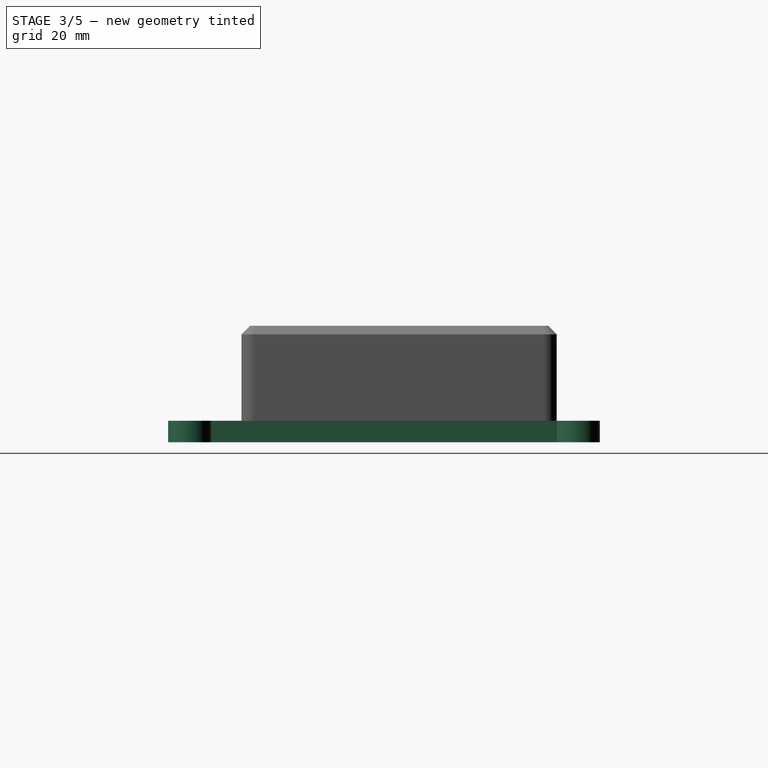
[diagram: stage 3 of 5 — right view after this stage's code; geometry added in this stage tinted green]
FEATURE [Sketcher::SketchObject] Sketch
  FullyConstrained = true
  MapMode = 5
  Support = -> [XY_Plane]
  expr: Constraints[133] = 5 * 2.54
  expr: Constraints[132] = 34 * 1.27
  expr: Constraints[9] = 23 * 2.54
  expr: Constraints[8] = 35 * 2.54
  sketch-geometry (61):
    g0: LineSegment StartX=-44.45 StartY=29.21 StartZ=0 EndX=44.45 EndY=29.21 EndZ=0
    g1: LineSegment StartX=44.45 StartY=29.21 StartZ=0 EndX=44.45 EndY=-29.21 EndZ=0
    g2: LineSegment StartX=44.45 StartY=-29.21 StartZ=0 EndX=-44.45 EndY=-29.21 EndZ=0
    g3: LineSegment StartX=-44.45 StartY=-29.21 StartZ=0 EndX=-44.45 EndY=29.21 EndZ=0
    g4: LineSegment StartX=-47.6 StartY=32.15 StartZ=0 EndX=47.6 EndY=32.15 EndZ=0
    g5: LineSegment StartX=47.6 StartY=32.15 StartZ=0 EndX=47.6 EndY=-32.15 EndZ=0
    g6: LineSegment StartX=47.6 StartY=-32.15 StartZ=0 EndX=-47.6 EndY=-32.15 EndZ=0
    g7: LineSegment StartX=-47.6 StartY=-32.15 StartZ=0 EndX=-47.6 EndY=32.15 EndZ=0
    g8: LineSegment StartX=-46.1 StartY=30.65 StartZ=0 EndX=46.1 EndY=30.65 EndZ=0
    g9: LineSegment StartX=46.1 StartY=30.65 StartZ=0 EndX=46.1 EndY=-30.65 EndZ=0
    g10: LineSegment StartX=46.1 StartY=-30.65 StartZ=0 EndX=-46.1 EndY=-30.65 EndZ=0
    g11: LineSegment StartX=-46.1 StartY=-30.65 StartZ=0 EndX=-46.1 EndY=30.65 EndZ=0
    g12: LineSegment StartX=-55 StartY=50 StartZ=0 EndX=55 EndY=50 EndZ=0
    g13: LineSegment StartX=55 StartY=50 StartZ=0 EndX=55 EndY=-50 EndZ=0
    g14: LineSegment StartX=55 StartY=-50 StartZ=0 EndX=-55 EndY=-50 EndZ=0
    g15: LineSegment StartX=-55 StartY=-50 StartZ=0 EndX=-55 EndY=50 EndZ=0
    g16: ArcOfCircle CenterX=-62 CenterY=45 CenterZ=0 NormalX=0 NormalY=0 NormalZ=1 AngleXU=0 Radius=5 StartAngle=1.5708 EndAngle=4.71239
    g17: ArcOfCircle CenterX=62 CenterY=45 CenterZ=0 NormalX=0 NormalY=0 NormalZ=1 AngleXU=0 Radius=5 StartAngle=4.71239 EndAngle=7.85398
    g18: LineSegment StartX=-62 StartY=40 StartZ=0 EndX=62 EndY=40 EndZ=0
    g19: LineSegment StartX=-62 StartY=50 StartZ=0 EndX=62 EndY=50 EndZ=0
    g20: ArcOfCircle CenterX=-62 CenterY=-45 CenterZ=0 NormalX=0 NormalY=0 NormalZ=1 AngleXU=0 Radius=5 StartAngle=1.5708 EndAngle=4.71239
    g21: ArcOfCircle CenterX=62 CenterY=-45 CenterZ=0 NormalX=0 NormalY=0 NormalZ=1 AngleXU=0 Radius=5 StartAngle=4.71239 EndAngle=7.85398
    g22: LineSegment StartX=-62 StartY=-50 StartZ=0 EndX=62 EndY=-50 EndZ=0
    g23: LineSegment StartX=-62 StartY=-40 StartZ=0 EndX=62 EndY=-40 EndZ=0
    g24: LineSegment StartX=-62 StartY=40 StartZ=0 EndX=-55 EndY=40 EndZ=0
    g25: LineSegment StartX=-55 StartY=40 StartZ=0 EndX=-55 EndY=-40 EndZ=0
    g26: LineSegment StartX=-55 StartY=-40 StartZ=0 EndX=-62 EndY=-40 EndZ=0
    g27: LineSegment StartX=62 StartY=40 StartZ=0 EndX=55 EndY=40 EndZ=0
    g28: LineSegment StartX=55 StartY=40 StartZ=0 EndX=55 EndY=-40 EndZ=0
    g29: LineSegment StartX=55 StartY=-40 StartZ=0 EndX=62 EndY=-40 EndZ=0
    g30: ArcOfCircle CenterX=60 CenterY=45 CenterZ=0 NormalX=0 NormalY=0 NormalZ=1 AngleXU=0 Radius=1.8 StartAngle=1.5708 EndAngle=4.71239
    g31: ArcOfCircle CenterX=62 CenterY=45 CenterZ=0 NormalX=0 NormalY=0 NormalZ=1 AngleXU=0 Radius=1.8 StartAngle=4.71239 EndAngle=7.85398
    g32: LineSegment StartX=60 StartY=43.2 StartZ=0 EndX=62 EndY=43.2 EndZ=0
    g33: LineSegment StartX=60 StartY=46.8 StartZ=0 EndX=62 EndY=46.8 EndZ=0
    g34: ArcOfCircle CenterX=-62 CenterY=45 CenterZ=0 NormalX=0 NormalY=0 NormalZ=1 AngleXU=0 Radius=1.8 StartAngle=1.5708 EndAngle=4.71239
    g35: ArcOfCircle CenterX=-60 CenterY=45 CenterZ=0 NormalX=0 NormalY=0 NormalZ=1 AngleXU=0 Radius=1.8 StartAngle=4.71239 EndAngle=7.85398
    g36: LineSegment StartX=-62 StartY=43.2 StartZ=0 EndX=-60 EndY=43.2 EndZ=0
    g37: LineSegment StartX=-62 StartY=46.8 StartZ=0 EndX=-60 EndY=46.8 EndZ=0
    g38: ArcOfCircle CenterX=-62 CenterY=-45 CenterZ=0 NormalX=0 NormalY=0 NormalZ=1 AngleXU=0 Radius=1.8 StartAngle=1.5708 EndAngle=4.71239
    g39: ArcOfCircle CenterX=-60 CenterY=-45 CenterZ=0 NormalX=0 NormalY=0 NormalZ=1 AngleXU=0 Radius=1.8 StartAngle=4.71239 EndAngle=7.85398
    g40: LineSegment StartX=-62 StartY=-46.8 StartZ=0 EndX=-60 EndY=-46.8 EndZ=0
    g41: LineSegment StartX=-62 StartY=-43.2 StartZ=0 EndX=-60 EndY=-43.2 EndZ=0
    g42: ArcOfCircle CenterX=60 CenterY=-45 CenterZ=0 NormalX=0 NormalY=0 NormalZ=1 AngleXU=0 Radius=1.8 StartAngle=1.5708 EndAngle=4.71239
    g43: ArcOfCircle CenterX=62 CenterY=-45 CenterZ=0 NormalX=0 NormalY=0 NormalZ=1 AngleXU=0 Radius=1.8 StartAngle=4.71239 EndAngle=7.85398
    g44: LineSegment StartX=60 StartY=-46.8 StartZ=0 EndX=62 EndY=-46.8 EndZ=0
    g45: LineSegment StartX=60 StartY=-43.2 StartZ=0 EndX=62 EndY=-43.2 EndZ=0
    g46: LineSegment StartX=30.48 StartY=-45 StartZ=0 EndX=43.18 EndY=-45 EndZ=0
    g47: LineSegment StartX=17.78 StartY=-45 StartZ=0 EndX=30.48 EndY=-45 EndZ=0
    g48: LineSegment StartX=5.08 StartY=-45 StartZ=0 EndX=17.78 EndY=-45 EndZ=0
    g49: LineSegment StartX=-7.62 StartY=-45 StartZ=0 EndX=5.08 EndY=-45 EndZ=0
    g50: LineSegment StartX=-20.32 StartY=-45 StartZ=0 EndX=-7.62 EndY=-45 EndZ=0
    g51: LineSegment StartX=-33.02 StartY=-45 StartZ=0 EndX=-20.32 EndY=-45 EndZ=0
    g52: Circle CenterX=-33.02 CenterY=-45 CenterZ=0 NormalX=0 NormalY=0 NormalZ=1 AngleXU=0 Radius=1.25
    g53: Circle CenterX=-20.32 CenterY=-45 CenterZ=0 NormalX=0 NormalY=0 NormalZ=1 AngleXU=0 Radius=1.25
    g54: Circle CenterX=-7.62 CenterY=-45 CenterZ=0 NormalX=0 NormalY=0 NormalZ=1 AngleXU=0 Radius=1.25
    g55: Circle CenterX=5.08 CenterY=-45 CenterZ=0 NormalX=0 NormalY=0 NormalZ=1 AngleXU=0 Radius=1.25
    g56: Circle CenterX=17.78 CenterY=-45 CenterZ=0 NormalX=0 NormalY=0 NormalZ=1 AngleXU=0 Radius=1.25
    g57: Circle CenterX=30.48 CenterY=-45 CenterZ=0 NormalX=0 NormalY=0 NormalZ=1 AngleXU=0 Radius=1.25
    g58: Circle CenterX=43.18 CenterY=-45 CenterZ=0 NormalX=0 NormalY=0 NormalZ=1 AngleXU=0 Radius=1.25
    g59: Circle CenterX=-45.72 CenterY=-45 CenterZ=0 NormalX=0 NormalY=0 NormalZ=1 AngleXU=0 Radius=1.25
    g60: LineSegment StartX=-45.72 StartY=-45 StartZ=0 EndX=-33.02 EndY=-45 EndZ=0
  constraints (154):
    c: Coincident(g0,g1)
    c: Coincident(g1,g2)
    c: Coincident(g2,g3)
    c: Coincident(g3,g0)
    c: Horizontal(g0)
    c: Horizontal(g2)
    c: Vertical(g1)
    c: Vertical(g3)
    c: DistanceX(g0,g0) = 88.9
    c: DistanceY(g1,g1) = 58.42
    c: Symmetric(g0,g1,g-1)
    c: Coincident(g4,g5)
    c: Coincident(g5,g6)
    c: Coincident(g6,g7)
    c: Coincident(g7,g4)
    c: Horizontal(g4)
    c: Horizontal(g6)
    c: Vertical(g5)
    c: Vertical(g7)
    c: Symmetric(g5,g4,g-1)
    c: DistanceX(g4,g4) = 95.2
    c: DistanceY(g5,g5) = 64.3
    c: Coincident(g8,g9)
    c: Coincident(g9,g10)
    c: Coincident(g10,g11)
    c: Coincident(g11,g8)
    c: Horizontal(g8)
    c: Horizontal(g10)
    c: Vertical(g9)
    c: Vertical(g11)
    c: Symmetric(g9,g8,g-1)
    c: DistanceX(g4,g8) = 1.5
    c: DistanceY(g8,g4) = 1.5
    c: Coincident(g12,g13)
    c: Coincident(g13,g14)
    c: Coincident(g14,g15)
    c: Coincident(g15,g12)
    c: Horizontal(g12)
    c: Horizontal(g14)
    c: Vertical(g13)
    c: Vertical(g15)
    c: Symmetric(g12,g13,g-1)
    c: DistanceX(g12,g-1) = 55
    c: DistanceY(g-1,g12) = 50
    c: Tangent(g16,g19) = 1.5708
    c: Tangent(g16,g18) = -1.5708
    c: Tangent(g18,g17) = -1.5708
    c: Tangent(g19,g17) = 1.5708
    c: Horizontal(g18)
    c: Equal(g16,g17)
    c: Tangent(g20,g23) = 1.5708
    c: Tangent(g20,g22) = -1.5708
    c: Tangent(g22,g21) = -1.5708
    c: Tangent(g23,g21) = 1.5708
    c: Horizontal(g22)
    c: Equal(g20,g21)
    c: Equal(g17,g21)
    c: Vertical(g17,g21)
    c: Vertical(g16,g20)
    c: Symmetric(g16,g21,g-1)
    c: Diameter(g17) = 10
    c: Horizontal(g17,g12)
    c: DistanceX(g12,g17) = 7
    c: Horizontal(g24)
    c: Coincident(g24,g25)
    c: Vertical(g25)
    c: Coincident(g25,g26)
    c: Horizontal(g26)
    c: Horizontal(g27)
    c: Coincident(g27,g28)
    c: Vertical(g28)
    c: Coincident(g28,g29)
    c: Horizontal(g29)
    c: Equal(g27,g24)
    c: Equal(g24,g26)
    c: Equal(g25,g28)
    c: DistanceX(g27,g27) = 7
    c: Coincident(g27,g17)
    c: Coincident(g29,g21)
    c: Coincident(g24,g16)
    c: Tangent(g30,g33) = 1.5708
    c: Tangent(g30,g32) = -1.5708
    c: Tangent(g32,g31) = -1.5708
    c: Tangent(g33,g31) = 1.5708
    c: Horizontal(g32)
    c: Equal(g30,g31)
    c: DistanceX(g30,g31) = 2
    c: Diameter(g31) = 3.6
    c: Coincident(g31,g17)
    c: Tangent(g34,g37) = 1.5708
    c: Tangent(g34,g36) = -1.5708
    c: Tangent(g36,g35) = -1.5708
    c: Tangent(g37,g35) = 1.5708
    c: Horizontal(g36)
    c: Equal(g34,g35)
    c: DistanceX(g34,g35) = 2
    c: Diameter(g34) = 3.6
    c: Coincident(g34,g16)
    c: Tangent(g38,g41) = 1.5708
    c: Tangent(g38,g40) = -1.5708
    c: Tangent(g40,g39) = -1.5708
    c: Tangent(g41,g39) = 1.5708
    c: Horizontal(g40)
    c: Equal(g38,g39)
    c: DistanceX(g38,g39) = 2
    c: Diameter(g39) = 3.6
    c: Coincident(g38,g20)
    c: Tangent(g42,g45) = 1.5708
    c: Tangent(g42,g44) = -1.5708
    c: Tangent(g44,g43) = -1.5708
    c: Tangent(g45,g43) = 1.5708
    c: Horizontal(g44)
    c: Equal(g42,g43)
    c: DistanceX(g42,g43) = 2
    c: Diameter(g43) = 3.6
    c: Coincident(g43,g21)
    c: Horizontal(g46)
    c: Horizontal(g49)
    c: Horizontal(g47)
    c: Horizontal(g48)
    c: Equal(g49,g48)
    c: Equal(g48,g47)
    c: Equal(g47,g46)
    c: Coincident(g47,g46)
    c: Coincident(g48,g47)
    c: Coincident(g49,g48)
    c: Horizontal(g50)
    c: Horizontal(g51)
    c: Equal(g51,g50)
    c: Equal(g50,g49)
    c: Coincident(g50,g49)
    c: Coincident(g51,g50)
    c: DistanceX(g-1,g46) = 43.18
    c: DistanceX(g46,g46) = 12.7
    c: Equal(g58,g57)
    c: Equal(g57,g56)
    c: Equal(g56,g55)
    c: Equal(g55,g54)
    c: Equal(g54,g53)
    c: Equal(g53,g52)
    c: Coincident(g58,g46)
    c: Coincident(g57,g46)
    c: Coincident(g56,g47)
    c: Coincident(g55,g48)
    c: Coincident(g54,g49)
    c: Coincident(g53,g50)
    c: Coincident(g52,g51)
    c: Diameter(g58) = 2.5
    c: Horizontal(g58,g42)
    c: Equal(g59,g52)
    c: Horizontal(g60)
    c: Equal(g60,g51)
    c: Coincident(g60,g52)
    c: Coincident(g59,g60)
FEATURE [PartDesign::Pad] Pad
  Direction = (1,1,1)
  Length = 5
  Length2 = 100
  Profile = -> Sketch
  Refine = true
  Reversed = true
  Type = 0
FEATURE [Sketcher::SketchObject] Sketch001
  FullyConstrained = true
  MapMode = 5
  Support = -> [XY_Plane]
  sketch-geometry (4):
    g0: LineSegment StartX=-47.65 StartY=32.2 StartZ=0 EndX=47.65 EndY=32.2 EndZ=0
    g1: LineSegment StartX=47.65 StartY=32.2 StartZ=0 EndX=47.65 EndY=-32.2 EndZ=0
    g2: LineSegment StartX=47.65 StartY=-32.2 StartZ=0 EndX=-47.65 EndY=-32.2 EndZ=0
    g3: LineSegment StartX=-47.65 StartY=-32.2 StartZ=0 EndX=-47.65 EndY=32.2 EndZ=0
  constraints (11):
    c: Coincident(g0,g1)
    c: Coincident(g1,g2)
    c: Coincident(g2,g3)
    c: Coincident(g3,g0)
    c: Horizontal(g0)
    c: Horizontal(g2)
    c: Vertical(g1)
    c: Vertical(g3)
    c: Symmetric(g0,g1,g-1)
    c: DistanceX(g0,g0) = 95.3
    c: DistanceY(g1,g1) = 64.4
FEATURE [PartDesign::Pocket] Pocket
  BaseFeature = -> Pad
  Length = 1.7
  Length2 = 100
  Profile = -> Sketch001
  Refine = true
  Type = 0
FEATURE [PartDesign::Body] Body
  Group = -> [Sketch,Pad,Sketch001,Pocket,Sketch002,Pocket001,Sketch003,Pad001,Sketch008,Pad003,Sketch010,Pocket006,Chamfer001,Chamfer002,Chamfer003]
  Origin = -> Origin
  Tip = -> Chamfer003
FEATURE [Sketcher::SketchObject] Sketch011
  ExternalGeometry = -> [Pocket005]
  FullyConstrained = true
  MapMode = 5
  Support = -> [XY_Plane001]
  sketch-geometry (8):
    g0: LineSegment StartX=-55 StartY=2.25 StartZ=0 EndX=-53 EndY=2.25 EndZ=0
    g1: LineSegment StartX=-53 StartY=2.25 StartZ=0 EndX=-53 EndY=-2.25 EndZ=0
    g2: LineSegment StartX=-53 StartY=-2.25 StartZ=0 EndX=-55 EndY=-2.25 EndZ=0
    g3: LineSegment StartX=-55 StartY=-2.25 StartZ=0 EndX=-55 EndY=2.25 EndZ=0
    g4: LineSegment StartX=53 StartY=2.25 StartZ=0 EndX=55 EndY=2.25 EndZ=0
    g5: LineSegment StartX=55 StartY=2.25 StartZ=0 EndX=55 EndY=-2.25 EndZ=0
    g6: LineSegment StartX=55 StartY=-2.25 StartZ=0 EndX=53 EndY=-2.25 EndZ=0
    g7: LineSegment StartX=53 StartY=-2.25 StartZ=0 EndX=53 EndY=2.25 EndZ=0
  constraints (21):
    c: Coincident(g0,g1)
    c: Coincident(g1,g2)
    c: Coincident(g2,g3)
    c: Coincident(g3,g0)
    c: Horizontal(g0)
    c: Horizontal(g2)
    c: Vertical(g1)
    c: Vertical(g3)
    c: Coincident(g4,g5)
    c: Coincident(g5,g6)
    c: Coincident(g6,g7)
    c: Coincident(g7,g4)
    c: Horizontal(g6)
    c: Vertical(g7)
    c: Symmetric(g4,g5,g-1)
    c: Horizontal(g1,g6)
    c: DistanceY(g3,g3) = 4.5
    c: Symmetric(g0,g4,g-2)
    c: PointOnObject(g0,g-3)
    c: Symmetric(g0,g4,g-2)
    c: PointOnObject(g0,g-4)
FEATURE [PartDesign::Pocket] Pocket007
  BaseFeature = -> Pocket005
  Length = 0.5
  Length2 = 100
  Profile = -> Sketch011
  Refine = true
  Reversed = true
  Type = 0
FEATURE [PartDesign::Body] Body001
  Group = -> [Sketch004,Pad002,Sketch005,Pocket002,Sketch006,Pocket003,Sketch007,Pocket004,Fillet,Chamfer,DatumPlane,Sketch009,Pocket005,Sketch011,Pocket007]
  Origin = -> Origin001
  Placement = pos=(0,0,37) rot=(0,0,1;0rad)
  Tip = -> Pocket007
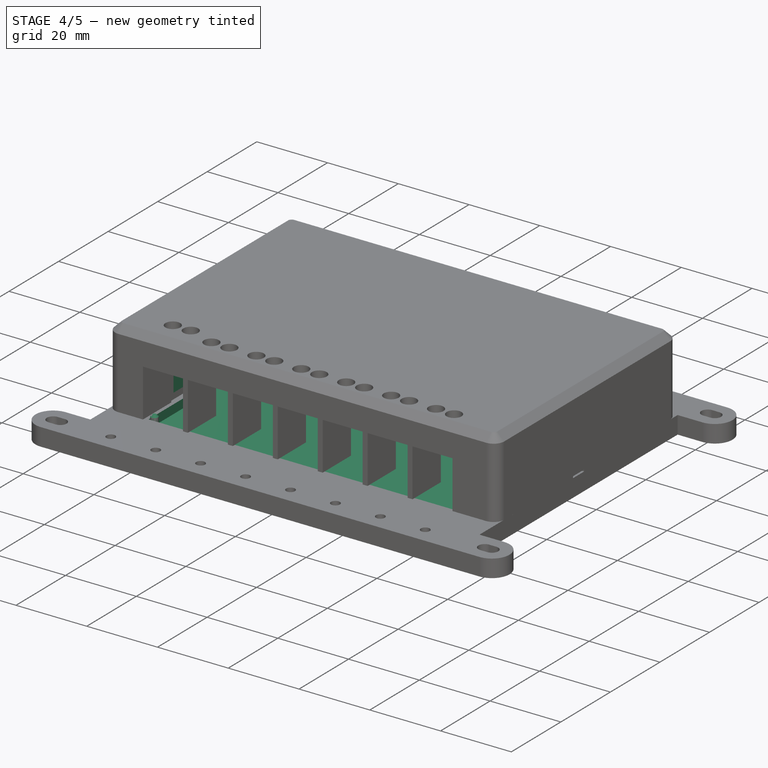
[diagram: stage 4 of 5 — iso view after this stage's code; geometry added in this stage tinted green]
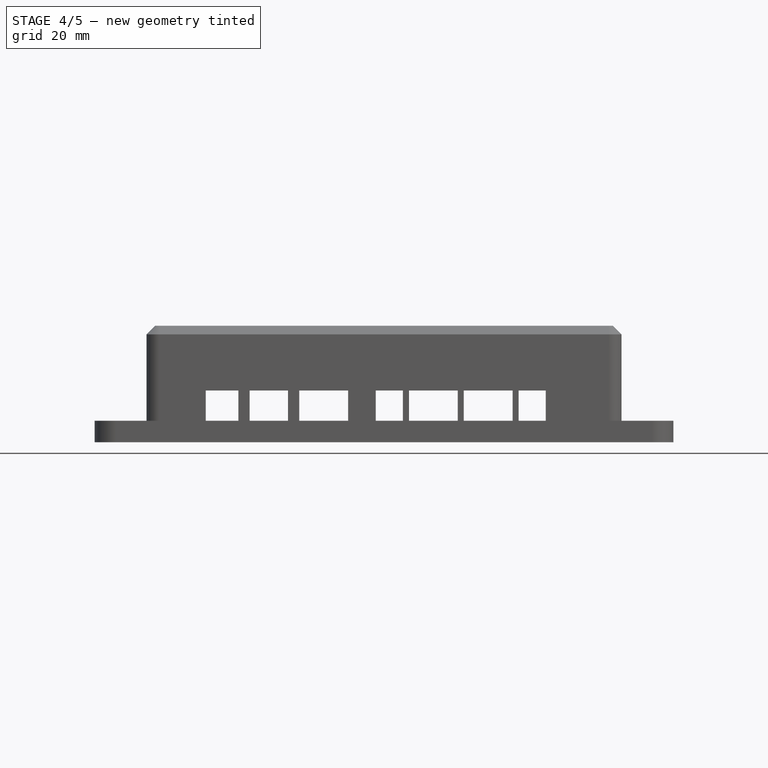
[diagram: stage 4 of 5 — front view after this stage's code; geometry added in this stage tinted green]
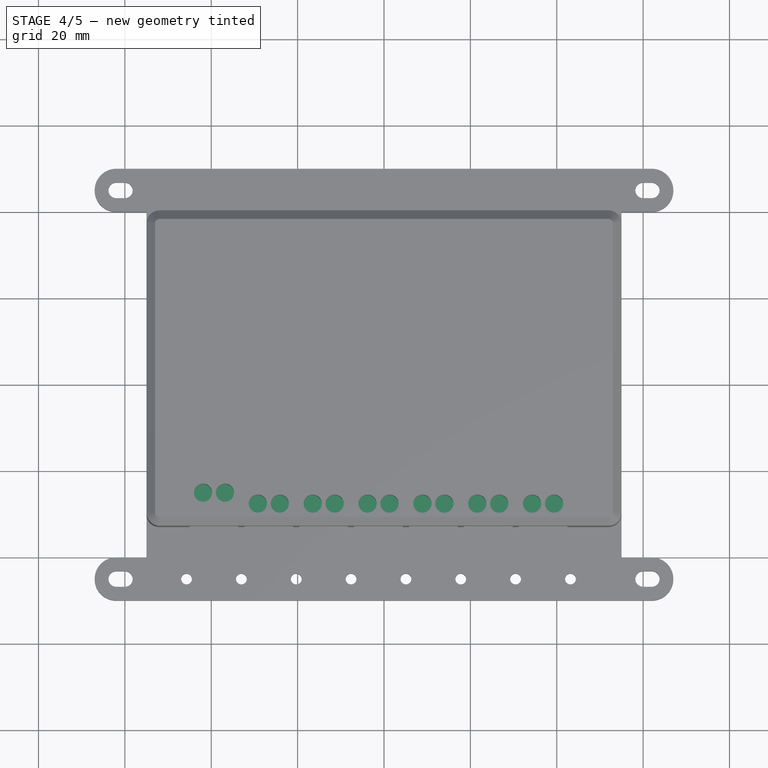
[diagram: stage 4 of 5 — top view after this stage's code; geometry added in this stage tinted green]
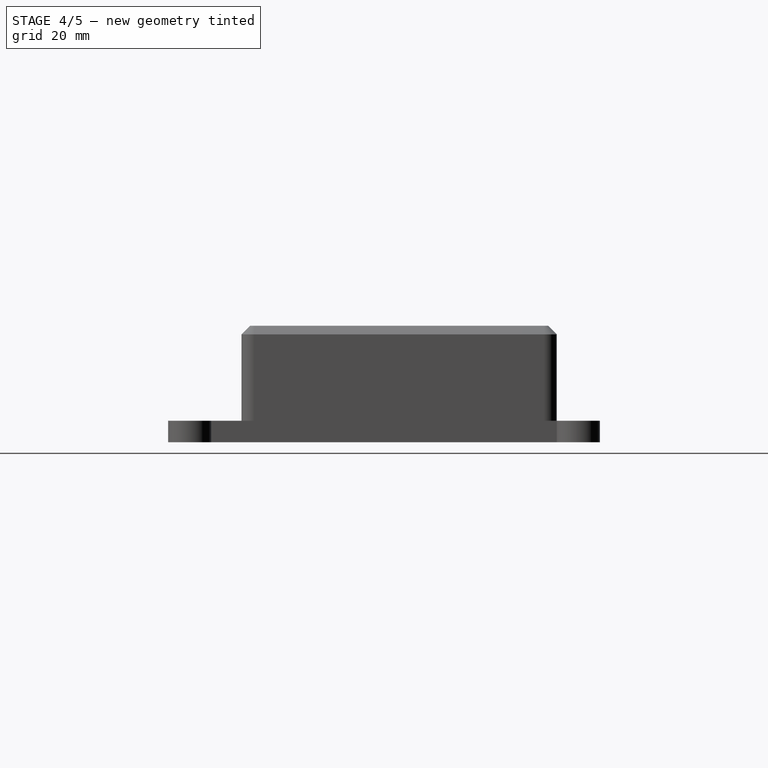
[diagram: stage 4 of 5 — right view after this stage's code; geometry added in this stage tinted green]
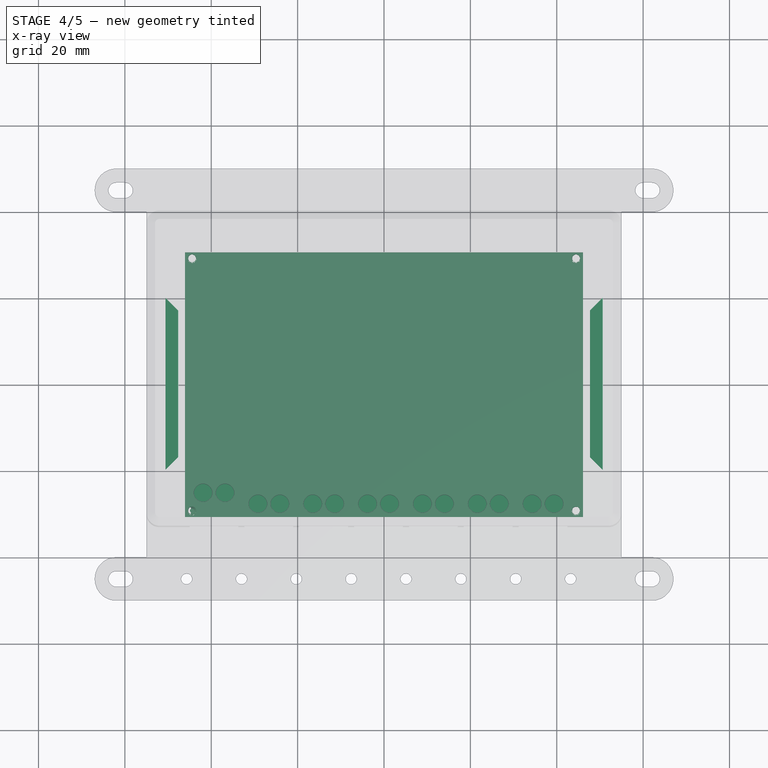
[diagram: stage 4 of 5 — x-ray composite at the top view; earlier geometry ghosted, this stage's added geometry solid]
FEATURE [Sketcher::SketchObject] Sketch002
  ExternalGeometry = -> [Pocket]
  FullyConstrained = false
  MapMode = 5
  Support = -> [XY_Plane]
  sketch-geometry (4):
    g0: LineSegment StartX=-46.1 StartY=30.65 StartZ=0 EndX=46.1 EndY=30.65 EndZ=0
    g1: LineSegment StartX=46.1 StartY=30.65 StartZ=0 EndX=46.1 EndY=-30.65 EndZ=0
    g2: LineSegment StartX=46.1 StartY=-30.65 StartZ=0 EndX=-46.1 EndY=-30.65 EndZ=0
    g3: LineSegment StartX=-46.1 StartY=-30.65 StartZ=0 EndX=-46.1 EndY=30.65 EndZ=0
  constraints (9):
    c: Coincident(g0,g1)
    c: Coincident(g1,g2)
    c: Coincident(g2,g3)
    c: Coincident(g3,g0)
    c: Horizontal(g0)
    c: Horizontal(g2)
    c: Vertical(g1)
    c: Vertical(g3)
    c: Symmetric(g1,g0,g-1)
FEATURE [PartDesign::Pocket] Pocket001
  BaseFeature = -> Pocket
  Length = 4.2
  Length2 = 100
  Profile = -> Sketch002
  Refine = true
  Type = 0
  expr: Length = 1.7 + 2.5
FEATURE [Sketcher::SketchObject] Sketch003
  FullyConstrained = true
  MapMode = 5
  Support = -> [XY_Plane]
  expr: Constraints[10] = 2.54 * 23
  expr: Constraints[9] = 2.54 * 35
  sketch-geometry (8):
    g0: LineSegment StartX=-44.45 StartY=29.21 StartZ=0 EndX=44.45 EndY=29.21 EndZ=0
    g1: LineSegment StartX=44.45 StartY=29.21 StartZ=0 EndX=44.45 EndY=-29.21 EndZ=0
    g2: LineSegment StartX=44.45 StartY=-29.21 StartZ=0 EndX=-44.45 EndY=-29.21 EndZ=0
    g3: LineSegment StartX=-44.45 StartY=-29.21 StartZ=0 EndX=-44.45 EndY=29.21 EndZ=0
    g4: Circle CenterX=-44.45 CenterY=29.21 CenterZ=0 NormalX=0 NormalY=0 NormalZ=1 AngleXU=0 Radius=1
    g5: Circle CenterX=44.45 CenterY=29.21 CenterZ=0 NormalX=0 NormalY=0 NormalZ=1 AngleXU=0 Radius=1
    g6: Circle CenterX=44.45 CenterY=-29.21 CenterZ=0 NormalX=0 NormalY=0 NormalZ=1 AngleXU=0 Radius=1
    g7: Circle CenterX=-44.45 CenterY=-29.21 CenterZ=0 NormalX=0 NormalY=0 NormalZ=1 AngleXU=0 Radius=1
  constraints (19):
    c: Coincident(g0,g1)
    c: Coincident(g1,g2)
    c: Coincident(g2,g3)
    c: Coincident(g3,g0)
    c: Horizontal(g0)
    c: Horizontal(g2)
    c: Vertical(g1)
    c: Vertical(g3)
    c: Symmetric(g0,g1,g-1)
    c: DistanceX(g0,g0) = 88.9
    c: DistanceY(g1,g1) = 58.42
    c: Equal(g7,g6)
    c: Equal(g6,g5)
    c: Equal(g5,g4)
    c: Coincident(g4,g0)
    c: Coincident(g5,g0)
    c: Coincident(g7,g2)
    c: Coincident(g6,g1)
    c: Diameter(g4) = 2
FEATURE [PartDesign::Pad] Pad001
  BaseFeature = -> Pocket001
  Direction = (1,1,1)
  Length = 5
  Length2 = 100
  Profile = -> Sketch003
  Refine = true
  Reversed = true
  Type = 0
FEATURE [PartDesign::Plane] DatumPlane
  AttachmentOffset = pos=(0,0,22) rot=(0,0,1;0rad)
  Length = 127.922
  MapMode = 2
  Placement = pos=(0,0,22) rot=(0,0,1;0rad)
  ResizeMode = 0
  Support = -> [Pad002]
  Width = 90.9221
FEATURE [Sketcher::SketchObject] Sketch008
  ExternalGeometry = -> [Pad001]
  FullyConstrained = true
  MapMode = 5
  Support = -> [XY_Plane]
  sketch-geometry (9):
    g0: GeomPoint X=51.325 Y=36.1 Z=0
    g1: LineSegment StartX=-47.65 StartY=17 StartZ=0 EndX=-50.65 EndY=20 EndZ=0
    g2: LineSegment StartX=-50.65 StartY=20 StartZ=0 EndX=-50.65 EndY=-20 EndZ=0
    g3: LineSegment StartX=-50.65 StartY=-20 StartZ=0 EndX=-47.65 EndY=-17 EndZ=0
    g4: LineSegment StartX=-47.65 StartY=-17 StartZ=0 EndX=-47.65 EndY=17 EndZ=0
    g5: LineSegment StartX=47.65 StartY=17 StartZ=0 EndX=50.65 EndY=20 EndZ=0
    g6: LineSegment StartX=50.65 StartY=20 StartZ=0 EndX=50.65 EndY=-20 EndZ=0
    g7: LineSegment StartX=50.65 StartY=-20 StartZ=0 EndX=47.65 EndY=-17 EndZ=0
    g8: LineSegment StartX=47.65 StartY=-17 StartZ=0 EndX=47.65 EndY=17 EndZ=0
  constraints (23):
    c: Symmetric(g-3,g-4,g0)
    c: Coincident(g1,g2)
    c: Coincident(g2,g3)
    c: Coincident(g3,g4)
    c: Vertical(g4)
    c: Coincident(g5,g6)
    c: Vertical(g6)
    c: Coincident(g6,g7)
    c: Coincident(g7,g8)
    c: Vertical(g8)
    c: Coincident(g8,g5)
    c: Coincident(g4,g1)
    c: Angle(g2,g1) = 0.785398
    c: Angle(g3,g2) = 0.785398
    c: DistanceX(g1,g1) = 3
    c: Symmetric(g1,g2,g-1)
    c: DistanceY(g2,g2) = 40
    c: Equal(g4,g8)
    c: Equal(g2,g6)
    c: Horizontal(g1,g5)
    c: DistanceX(g5,g5) = 3
    c: Symmetric(g5,g1,g-2)
    c: PointOnObject(g1,g-5)
FEATURE [PartDesign::Pad] Pad003
  BaseFeature = -> Pad001
  Direction = (1,1,1)
  Length = 10
  Length2 = 100
  Profile = -> Sketch008
  Refine = true
  Type = 0
FEATURE [PartDesign::Chamfer] Chamfer001
  Angle = 45
  Base = -> Pad003 [Edge163,Edge167,Edge161,Edge165]
  BaseFeature = -> Pad003
  ChamferType = 0
  FlipDirection = false
  Refine = true
  Size = 0.5
  Size2 = 1
  SupportTransform = false
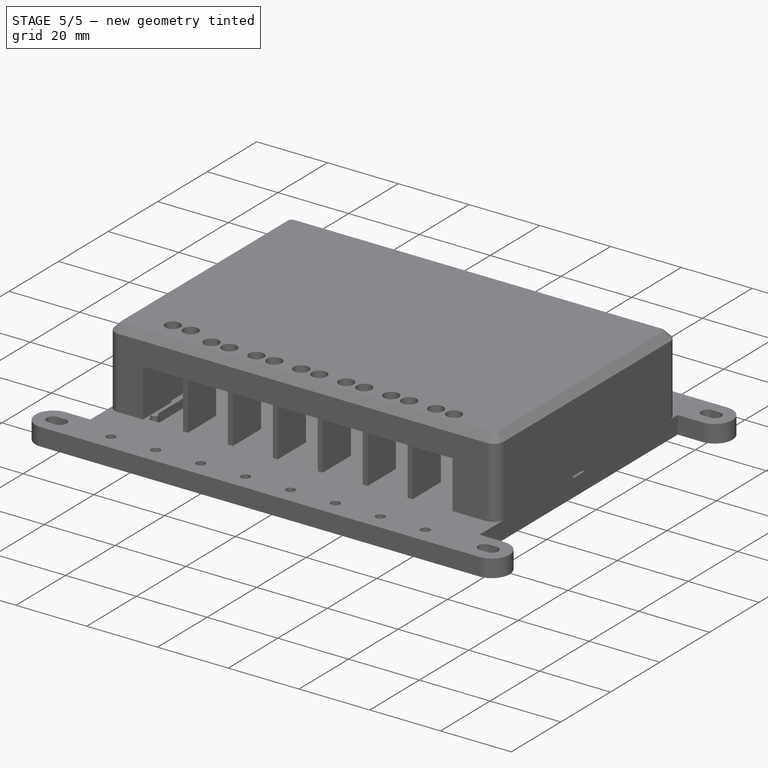
[diagram: stage 5 of 5 — iso view after this stage's code; geometry added in this stage tinted green]
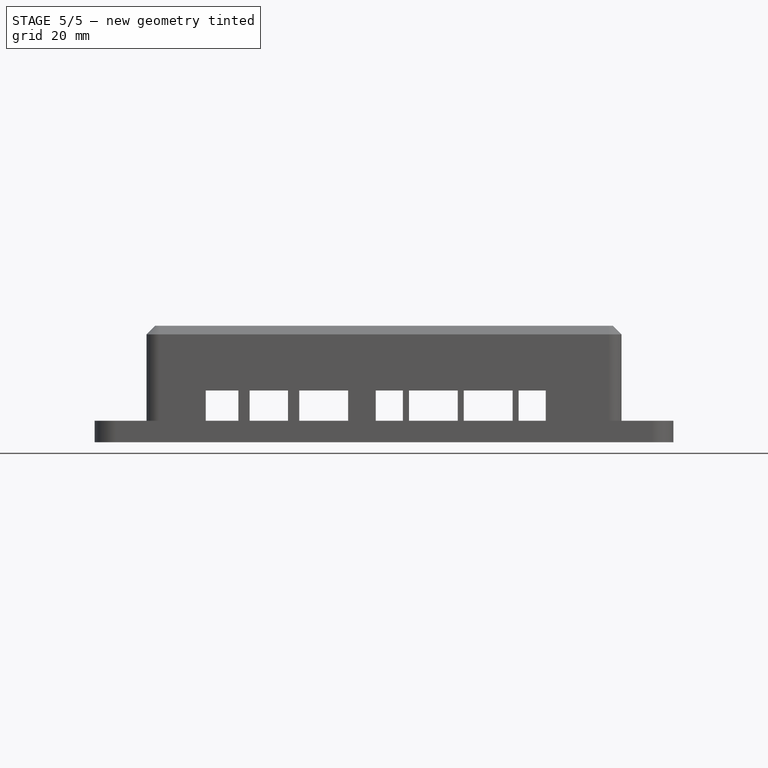
[diagram: stage 5 of 5 — front view after this stage's code; geometry added in this stage tinted green]
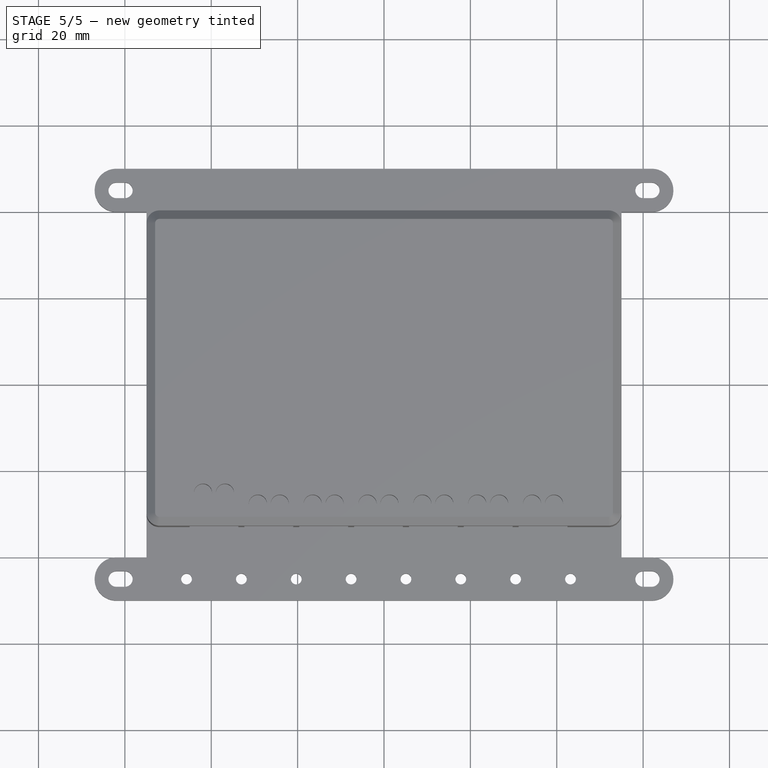
[diagram: stage 5 of 5 — top view after this stage's code; geometry added in this stage tinted green]
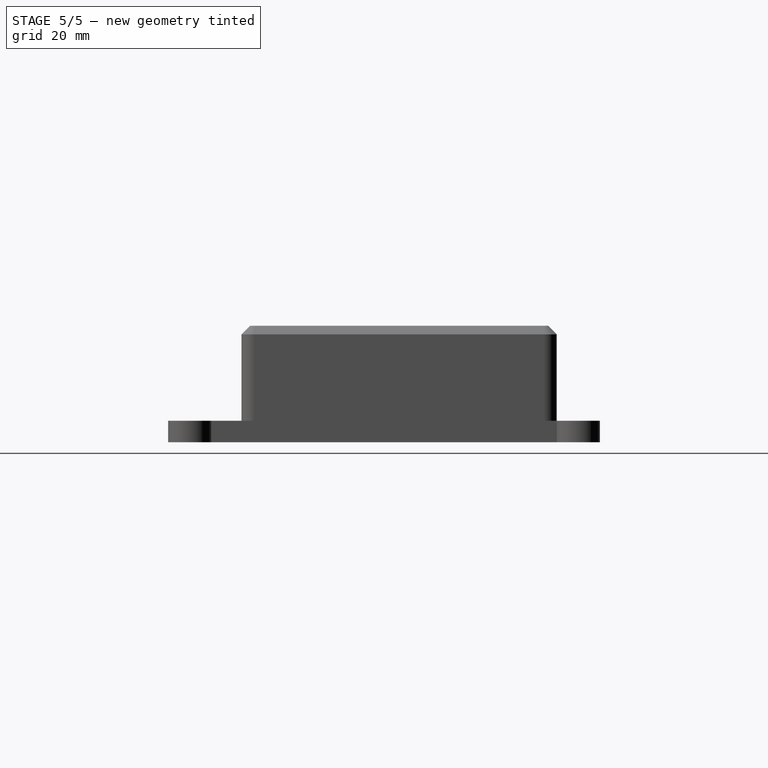
[diagram: stage 5 of 5 — right view after this stage's code; geometry added in this stage tinted green]
FEATURE [Sketcher::SketchObject] Sketch010
  ExternalGeometry = -> [Pad003]
  FullyConstrained = false
  MapMode = 5
  Support = -> [XY_Plane]
  sketch-geometry (8):
    g0: LineSegment StartX=-58.8077 StartY=26.8861 StartZ=0 EndX=70.2061 EndY=26.8861 EndZ=0
    g1: LineSegment StartX=70.2061 StartY=26.8861 StartZ=0 EndX=70.2061 EndY=19.5 EndZ=0
    g2: LineSegment StartX=70.2061 StartY=19.5 StartZ=0 EndX=-56.6111 EndY=19.5 EndZ=0
    g3: LineSegment StartX=-56.6111 StartY=19.5 StartZ=0 EndX=-56.6111 EndY=-19.5 EndZ=0
    g4: LineSegment StartX=-56.6111 StartY=-19.5 StartZ=0 EndX=58.0515 EndY=-19.5 EndZ=0
    g5: LineSegment StartX=58.0515 StartY=-19.5 StartZ=0 EndX=57.6122 EndY=-27.0038 EndZ=0
    g6: LineSegment StartX=57.6122 StartY=-27.0038 StartZ=0 EndX=-58.8077 EndY=-27.0038 EndZ=0
    g7: LineSegment StartX=-58.8077 StartY=-27.0038 StartZ=0 EndX=-58.8077 EndY=26.8861 EndZ=0
  constraints (17):
    c: Horizontal(g0)
    c: Coincident(g0,g1)
    c: Vertical(g1)
    c: Coincident(g1,g2)
    c: Horizontal(g2)
    c: Coincident(g2,g3)
    c: Vertical(g3)
    c: Coincident(g3,g4)
    c: Horizontal(g4)
    c: Coincident(g4,g5)
    c: Coincident(g5,g6)
    c: Horizontal(g6)
    c: Coincident(g6,g7)
    c: Vertical(g7)
    c: Coincident(g0,g7)
    c: DistanceY(g2,g-3) = 0.5
    c: DistanceY(g-3,g3) = 0.5
FEATURE [PartDesign::Pocket] Pocket006
  BaseFeature = -> Pad003
  Length = 5
  Length2 = 100
  Profile = -> Sketch010
  Refine = true
  Reversed = true
  Type = 1
FEATURE [PartDesign::Chamfer] Chamfer002
  Angle = 45
  Base = -> Chamfer001 [Edge97,Edge43,Edge49,Edge103,Edge98,Edge96,Edge101,Edge102]
  BaseFeature = -> Chamfer001
  ChamferType = 0
  FlipDirection = false
  Refine = true
  Size = 0.5
  Size2 = 1
  SupportTransform = false
FEATURE [PartDesign::Chamfer] Chamfer003
  Angle = 45
  Base = -> Chamfer002 [Edge24,Edge17]
  BaseFeature = -> Chamfer002
  ChamferType = 0
  FlipDirection = false
  Refine = true
  Size = 1
  Size2 = 1
  SupportTransform = false
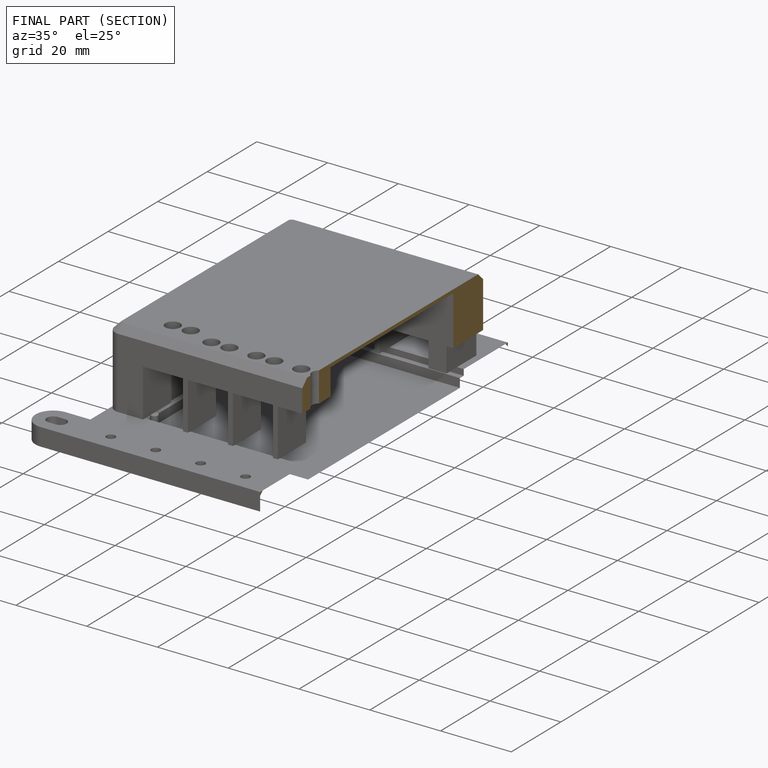
[diagram: finished part — half-section view (interior)]
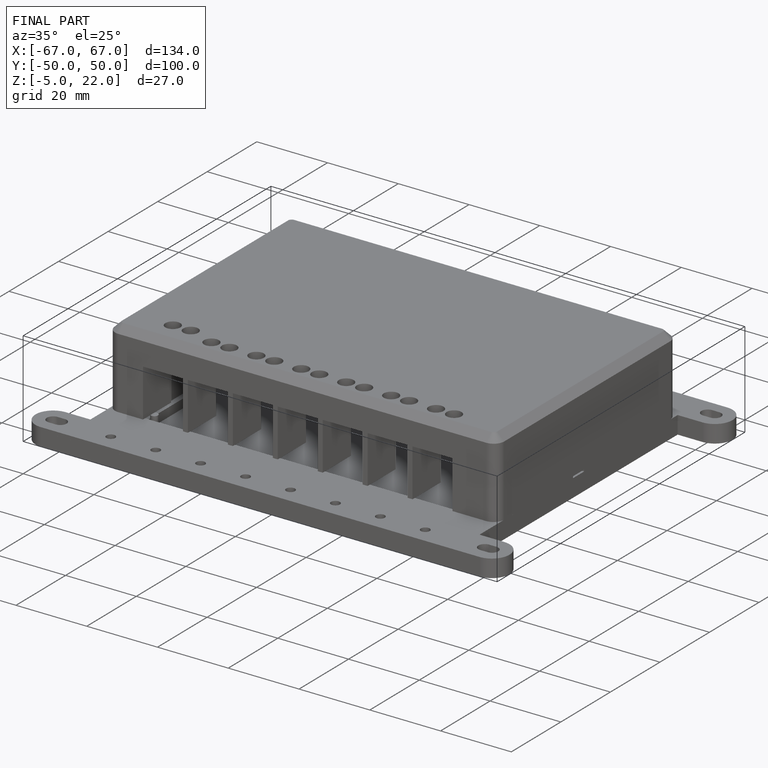
[diagram: finished part — iso view with bounding-box wireframe]
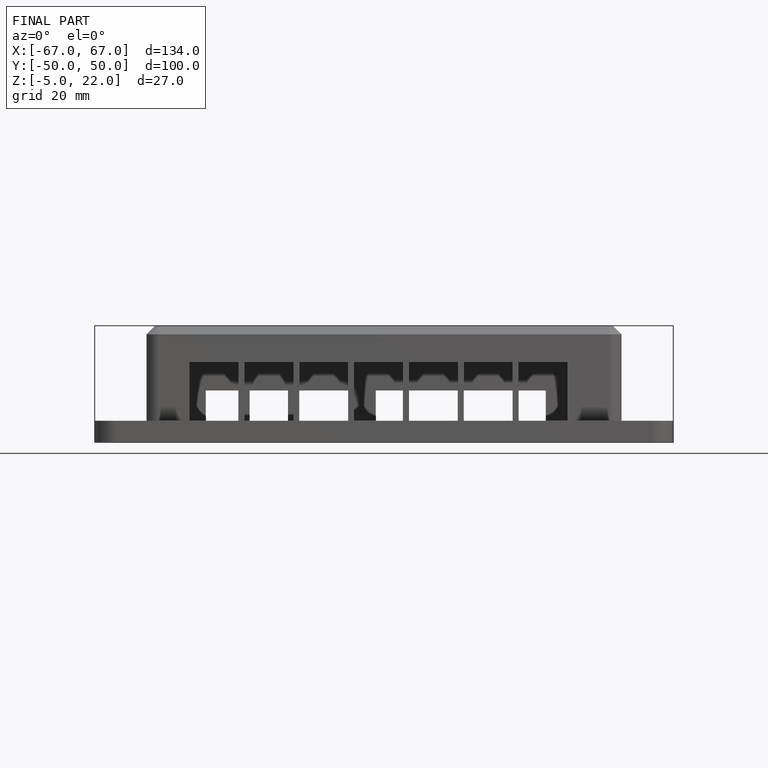
[diagram: finished part — front view with bounding-box wireframe]
